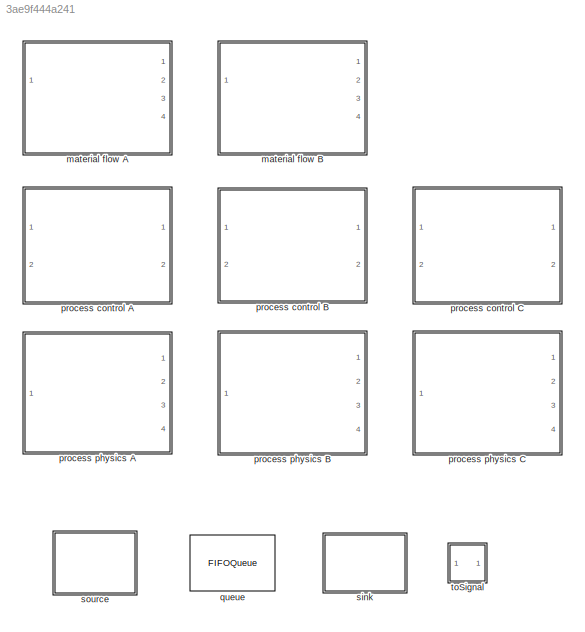
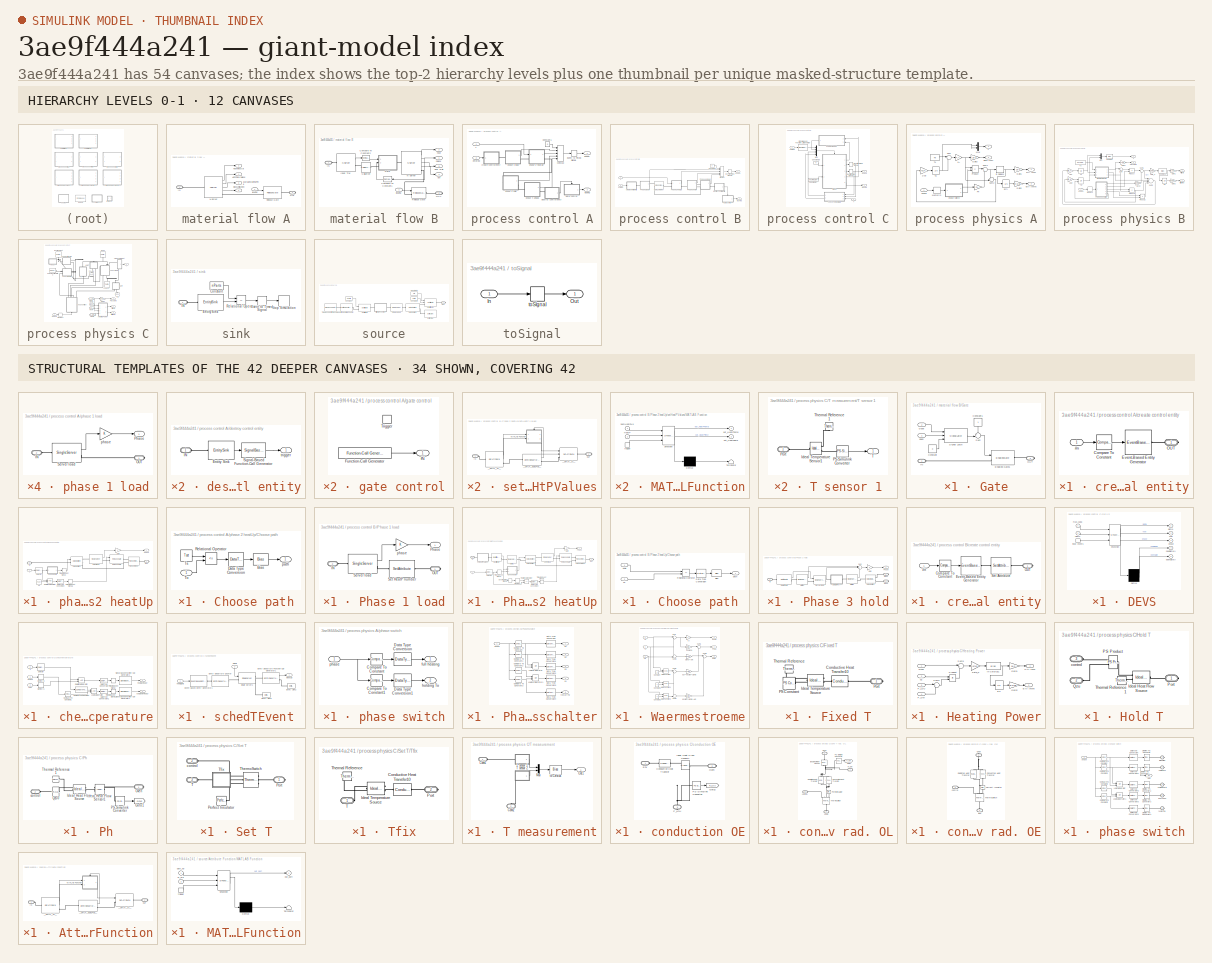
[diagram: thumbnail index - top-2 hierarchy levels (12 canvases) + 34 structural-template representatives of the remaining 42 canvases]
MODEL slx_3ae9f444a241
KIND library
CONFIG AbsTol = auto
CONFIG FixedStep = auto
CONFIG MaxStep = auto
CONFIG MinStep = auto
CONFIG RelTol = 1e-3
CONFIG SampleTimeConstraint = Unconstrained
CONFIG Solver = ode45
CONFIG SolverMode = Auto
CONFIG SolverName = ode45
CONFIG StartTime = 0.0
CONFIG StopTime = 10.0
BLOCK [SubSystem] material flow A
  Ports = [1, 4, 0, 0, 0, 1, 1]
  RequestExecContextInheritance = off
  Variant = off
BLOCK [Outport] material flow A/#EntitiesInBlock
  IconDisplay = Port number
BLOCK [Outport] material flow A/#EntitiesOut
  IconDisplay = Port number
  Port = 2
BLOCK [PMIOPort] material flow A/IN
  Port = 1
  Side = Left
BLOCK [NServer] material flow A/N-Server
  NumberOfServers = N
  OutputPortMap = o0,o1,o4,o5
  Ports = [0, 4, 0, 0, 0, 1, 1]
  ServiceTime = 0
  StatAverageWait = on
  StatNumberDeparted = on
  StatNumberInBlock = on
  StatUtilization = on
BLOCK [PMIOPort] material flow A/OUT
  Port = 2
  Side = Right
BLOCK [ReleaseGate] material flow A/Release Gate
  InputPortMap = u0
  OpenGateUpon = Function call from port fcn
  Ports = [1, 0, 0, 0, 0, 1, 1]
BLOCK [Outport] material flow A/avarageWaitingTime
  IconDisplay = Port number
  Port = 3
BLOCK [Outport] material flow A/blockUtilization
  IconDisplay = Port number
  Port = 4
BLOCK [Inport] material flow A/leaving
  IconDisplay = Port number
BLOCK [SubSystem] material flow B
  Ports = [1, 4, 0, 0, 0, 1, 1]
  RequestExecContextInheritance = off
  Variant = off
BLOCK [Reference] material flow B/Compare To Constant1  REF=simulink/Logic and Bit
Operations/Compare
To Constant
  Ports = [1, 1]
  SourceBlock = simulink/Logic and Bit\nOperations/Compare\nTo Constant
  SourceType = Compare To Constant
BLOCK [Reference] material flow B/Compare To Constant2  REF=simulink/Logic and Bit
Operations/Compare
To Constant
  Ports = [1, 1]
  SourceBlock = simulink/Logic and Bit\nOperations/Compare\nTo Constant
  SourceType = Compare To Constant
BLOCK [SubSystem] material flow B/Gate
  Ports = [2, 0, 0, 0, 0, 1, 1]
  RequestExecContextInheritance = off
  Variant = off
BLOCK [Constant] material flow B/Gate/Constant
  Value = 0
BLOCK [Constant] material flow B/Gate/Constant1
BLOCK [EnabledGate] material flow B/Gate/Enabled Gate1
  InputPortMap = u0
  Ports = [1, 0, 0, 0, 0, 1, 1]
BLOCK [PMIOPort] material flow B/Gate/IN
  Port = 1
  Side = Left
BLOCK [PMIOPort] material flow B/Gate/OUT
  Port = 2
  Side = Right
BLOCK [SignalLatch] material flow B/Gate/Signal Latch
  InputPortMap = u0,u1,u2
  MemoryReadEdgeOption = Rising
  OutputPortMap = o0
  Ports = [3, 1]
  ReadMemoryUpon = Trigger from port rtr
  ReportMemoryState = on
  ReportMemoryUponRead = off
  WriteMemoryUpon = Trigger from port wtr
BLOCK [Sum] material flow B/Gate/Sum
  IconShape = round
  InputSameDT = off
  Inputs = +-|
  OutDataTypeStr = Inherit: Inherit via internal rule
  Ports = [2, 1]
  SaturateOnIntegerOverflow = off
BLOCK [Inport] material flow B/Gate/close
  IconDisplay = Port number
  Port = 2
BLOCK [Inport] material flow B/Gate/open
  IconDisplay = Port number
BLOCK [PMIOPort] material flow B/IN
  Port = 1
  Side = Left
BLOCK [NServer] material flow B/Input Tray
  NumberOfServers = N
  OutputPortMap = o1
  Ports = [0, 1, 0, 0, 0, 1, 1]
  ServiceTime = 0
  StatNumberInBlock = on
BLOCK [NServer] material flow B/N-Server
  NumberOfServers = N
  OutputPortMap = o0,o1,o4,o5
  Ports = [0, 4, 0, 0, 0, 1, 1]
  ServiceTime = 0
  StatAverageWait = on
  StatNumberDeparted = on
  StatNumberInBlock = on
  StatUtilization = on
BLOCK [NServer] material flow B/Nullserver
  NumberOfServers = 1
  Ports = [0, 0, 0, 0, 0, 1, 1]
  ServiceTime = 0
BLOCK [PMIOPort] material flow B/OUT
  Port = 2
  Side = Right
BLOCK [ReleaseGate] material flow B/Release Gate
  InputPortMap = u0
  OpenGateUpon = Function call from port fcn
  Ports = [1, 0, 0, 0, 0, 1, 1]
BLOCK [Outport] material flow B/avg. wait
  IconDisplay = Port number
  Port = 3
BLOCK [Inport] material flow B/leaving
  IconDisplay = Port number
BLOCK [Outport] material flow B/nblock
  IconDisplay = Port number
BLOCK [Outport] material flow B/nout
  IconDisplay = Port number
  Port = 2
BLOCK [Outport] material flow B/util
  IconDisplay = Port number
  Port = 4
BLOCK [SubSystem] process control A
  Ports = [2, 2]
  RequestExecContextInheritance = off
  Variant = off
BLOCK [Constant] process control A/Constant1
  Value = 0
BLOCK [EventToTimedSignal] process control A/Event to Timed Signal1
  InputPortMap = u0
  OutputPortMap = o0
  Ports = [1, 1]
BLOCK [MinMax] process control A/MinMax
  Function = max
  InputSameDT = off
  Inputs = 5
  Ports = [5, 1]
  SaturateOnIntegerOverflow = off
BLOCK [Inport] process control A/T
  IconDisplay = Port number
BLOCK [SubSystem] process control A/create control entity
  Ports = [1, 0, 0, 0, 0, 0, 1]
  RequestExecContextInheritance = off
  Variant = off
BLOCK [Inport] process control A/create control entity/#n
  IconDisplay = Port number
BLOCK [Reference] process control A/create control entity/Compare To Constant  REF=simulink/Logic and Bit
Operations/Compare
To Constant
  Ports = [1, 1]
  SourceBlock = simulink/Logic and Bit\nOperations/Compare\nTo Constant
  SourceType = Compare To Constant
BLOCK [EventBasedEntityGenerator] process control A/create control entity/Event-Based Entity Generator
  InputPortMap = u0
  Ports = [1, 0, 0, 0, 0, 0, 1]
BLOCK [PMIOPort] process control A/create control entity/OUT
  Port = 1
  Side = Right
BLOCK [SubSystem] process control A/destroy control entity
  Ports = [0, 1, 0, 0, 0, 1]
  RequestExecContextInheritance = off
  Variant = off
BLOCK [EntitySink] process control A/destroy control entity/Entity Sink
  OutputPortMap = o0
  Ports = [0, 1, 0, 0, 0, 1]
  StatNumberArrived = on
BLOCK [PMIOPort] process control A/destroy control entity/IN
  Port = 1
  Side = Left
BLOCK [SignalBasedFunctionCallGenerator] process control A/destroy control entity/Signal-Based Function-Call Generator
  InputPortMap = u1
  OutputPortMap = o0
  Ports = [1, 1]
BLOCK [Outport] process control A/destroy control entity/trigger
  IconDisplay = Port number
BLOCK [Inport] process control A/entered
  IconDisplay = Port number
  Port = 2
BLOCK [SubSystem] process control A/gate control
  Ports = [0, 1, 0, 1]
  RequestExecContextInheritance = off
  TreatAsAtomicUnit = on
  Variant = off
BLOCK [Reference] process control A/gate control/Function-Call Generator  REF=simulink/Ports &
Subsystems/Function-Call
Generator
  Ports = [0, 1]
  SourceBlock = simulink/Ports &\nSubsystems/Function-Call\nGenerator
  SourceType = Function-Call Generator
BLOCK [TriggerPort] process control A/gate control/Trigger
  Ports = []
  StatesWhenEnabling = held
  TriggerType = function-call
  VariantControl = Variant
BLOCK [Outport] process control A/gate control/fN
  IconDisplay = Port number
BLOCK [Outport] process control A/leaving
  IconDisplay = Port number
  Port = 2
BLOCK [Outport] process control A/phase
  IconDisplay = Port number
BLOCK [SubSystem] process control A/phase 1 load
  Ports = [0, 1, 0, 0, 0, 1, 1]
  RequestExecContextInheritance = off
  Variant = off
BLOCK [PMIOPort] process control A/phase 1 load/IN
  Port = 2
  Side = Left
BLOCK [PMIOPort] process control A/phase 1 load/OUT
  Port = 1
  Side = Right
BLOCK [Outport] process control A/phase 1 load/Phase
  IconDisplay = Port number
BLOCK [SingleServer] process control A/phase 1 load/Server load
  OutputPortMap = o1
  Ports = [0, 1, 0, 0, 0, 1, 1]
  ServiceTime = 60*ts
  StatNumberInBlock = on
BLOCK [Gain] process control A/phase 1 load/phase
  OutDataTypeStr = Inherit: Inherit via internal rule
  ParamDataTypeStr = Inherit: Inherit via internal rule
  SaturateOnIntegerOverflow = off
BLOCK [SubSystem] process control A/phase 2 heatUp
  Ports = [1, 1, 0, 0, 0, 1, 1]
  RequestExecContextInheritance = off
  Variant = off
BLOCK [SubSystem] process control A/phase 2 heatUp/Choose path
  Ports = [1, 1]
  RequestExecContextInheritance = off
  Variant = off
BLOCK [Bias] process control A/phase 2 heatUp/Choose path/Bias
  Bias = 1
  SaturateOnIntegerOverflow = off
BLOCK [DataTypeConversion] process control A/phase 2 heatUp/Choose path/Data Type Conversion
  OutDataTypeStr = double
  RndMeth = Floor
  SaturateOnIntegerOverflow = off
BLOCK [RelationalOperator] process control A/phase 2 heatUp/Choose path/Relational Operator
  InputSameDT = off
  Operator = <=
  OutDataTypeStr = boolean
  Ports = [2, 1]
BLOCK [Inport] process control A/phase 2 heatUp/Choose path/To
  IconDisplay = Port number
BLOCK [Constant] process control A/phase 2 heatUp/Choose path/Ts
  Value = Tset
BLOCK [Outport] process control A/phase 2 heatUp/Choose path/path
  IconDisplay = Port number
BLOCK [DataTypeConversion] process control A/phase 2 heatUp/Data Type Conversion
  OutDataTypeStr = double
  RndMeth = Floor
  SaturateOnIntegerOverflow = off
BLOCK [Gain] process control A/phase 2 heatUp/Gain
  Gain = 2
  OutDataTypeStr = Inherit: Inherit via internal rule
  ParamDataTypeStr = Inherit: Inherit via internal rule
  SaturateOnIntegerOverflow = off
BLOCK [PMIOPort] process control A/phase 2 heatUp/IN
  Port = 2
  Side = Left
BLOCK [PMIOPort] process control A/phase 2 heatUp/OUT
  Port = 1
  Side = Right
BLOCK [OutputSwitch] process control A/phase 2 heatUp/Output Switch
  InitialConditionsOpt = on
  InputPortMap = u0
  NumberOutputPorts = 2
  Ports = [1, 0, 0, 0, 0, 1, 2]
  SwitchingCriterion = From signal port p
BLOCK [PathCombiner] process control A/phase 2 heatUp/Path Combiner
  NumberInputPorts = 2
  Ports = [0, 0, 0, 0, 0, 2, 1]
BLOCK [Outport] process control A/phase 2 heatUp/Phase
  IconDisplay = Port number
BLOCK [RelationalOperator] process control A/phase 2 heatUp/Relational Operator
  InputSameDT = off
  OutDataTypeStr = boolean
  Ports = [2, 1]
BLOCK [ReleaseGate] process control A/phase 2 heatUp/Release Gate
  InputPortMap = u0
  Ports = [1, 0, 0, 0, 0, 1, 1]
BLOCK [Selector] process control A/phase 2 heatUp/Selector
  IndexOptions = Index vector (dialog)
  Indices = [1]
  InputPortWidth = 2
  OutputSizes = 1
  Ports = [1, 1]
BLOCK [SingleServer] process control A/phase 2 heatUp/Server load
  OutputPortMap = o1
  Ports = [0, 1, 0, 0, 0, 1, 1]
  ServiceTime = 0
  StatNumberInBlock = on
BLOCK [Inport] process control A/phase 2 heatUp/T
  IconDisplay = Port number
BLOCK [TimedToEventSignal] process control A/phase 2 heatUp/Timed to Event Signal
  InputPortMap = u0
  OutputPortMap = o0
  Ports = [1, 1]
BLOCK [TimedToEventSignal] process control A/phase 2 heatUp/Timed to Event Signal1
  InputPortMap = u0
  OutputPortMap = o0
  Ports = [1, 1]
BLOCK [Constant] process control A/phase 2 heatUp/Ts
  Value = Tset
BLOCK [SubSystem] process control A/phase 3 hold
  Ports = [0, 1, 0, 0, 0, 1, 1]
  RequestExecContextInheritance = off
  Variant = off
BLOCK [Gain] process control A/phase 3 hold/Gain
  Gain = 3
  OutDataTypeStr = Inherit: Inherit via internal rule
  ParamDataTypeStr = Inherit: Inherit via internal rule
  SaturateOnIntegerOverflow = off
BLOCK [PMIOPort] process control A/phase 3 hold/IN
  Port = 1
  Side = Left
BLOCK [PMIOPort] process control A/phase 3 hold/OUT1
  Port = 2
  Side = Right
BLOCK [Outport] process control A/phase 3 hold/Phase
  IconDisplay = Port number
BLOCK [SingleServer] process control A/phase 3 hold/Server load
  OutputPortMap = o1
  Ports = [0, 1, 0, 0, 0, 1, 1]
  ServiceTime = tH*60
  StatNumberInBlock = on
BLOCK [SubSystem] process control A/phase 4 unload
  Ports = [0, 1, 0, 0, 0, 1, 1]
  RequestExecContextInheritance = off
  Variant = off
BLOCK [Gain] process control A/phase 4 unload/Gain
  Gain = 4
  OutDataTypeStr = Inherit: Inherit via internal rule
  ParamDataTypeStr = Inherit: Inherit via internal rule
  SaturateOnIntegerOverflow = off
BLOCK [PMIOPort] process control A/phase 4 unload/IN
  Port = 2
  Side = Left
BLOCK [PMIOPort] process control A/phase 4 unload/OUT
  Port = 1
  Side = Right
BLOCK [Outport] process control A/phase 4 unload/Phase
  IconDisplay = Port number
BLOCK [SingleServer] process control A/phase 4 unload/Server load
  OutputPortMap = o1
  Ports = [0, 1, 0, 0, 0, 1, 1]
  ServiceTime = 60*ts
  StatNumberInBlock = on
BLOCK [SubSystem] process control B
  Ports = [2, 2]
  RequestExecContextInheritance = off
  Variant = off
BLOCK [Constant] process control B/Constant1
  Value = 0
BLOCK [EventToTimedSignal] process control B/Event to Timed Signal1
  InputPortMap = u0
  OutputPortMap = o0
  Ports = [1, 1]
BLOCK [MinMax] process control B/MinMax
  Function = max
  InputSameDT = off
  Inputs = 5
  Ports = [5, 1]
  SaturateOnIntegerOverflow = off
BLOCK [PathCombiner] process control B/Path Combiner
  NumberInputPorts = 2
  Ports = [0, 0, 0, 0, 0, 2, 1]
BLOCK [SubSystem] process control B/Phase 1 load
  Ports = [0, 1, 0, 0, 0, 1, 1]
  RequestExecContextInheritance = off
  Variant = off
BLOCK [PMIOPort] process control B/Phase 1 load/IN
  Port = 2
  Side = Left
BLOCK [PMIOPort] process control B/Phase 1 load/OUT
  Port = 1
  Side = Right
BLOCK [Outport] process control B/Phase 1 load/Phase
  IconDisplay = Port number
BLOCK [SingleServer] process control B/Phase 1 load/Server load
  OutputPortMap = o1
  Ports = [0, 1, 0, 0, 0, 1, 1]
  ServiceTime = 60*ts
  StatNumberInBlock = on
BLOCK [SetAttribute] process control B/Phase 1 load/Set HeatP number
  AttributeFrom = Dialog|Dialog
  AttributeName = nextHeatPNo|HeatP
  AttributeTreatAsVector = 1|1
  AttributeValue = 1|HeatProgram
  EvaluatedAttributeValue = { 1;HeatProgram}
  Ports = [0, 0, 0, 0, 0, 1, 1]
BLOCK [Gain] process control B/Phase 1 load/phase
  OutDataTypeStr = Inherit: Inherit via internal rule
  ParamDataTypeStr = Inherit: Inherit via internal rule
  SaturateOnIntegerOverflow = off
BLOCK [SubSystem] process control B/Phase 2 heatUp
  Ports = [1, 1, 0, 0, 0, 1, 1]
  RequestExecContextInheritance = off
  Variant = off
BLOCK [SubSystem] process control B/Phase 2 heatUp/Choose path
  Ports = [2, 1]
  RequestExecContextInheritance = off
  TreatAsAtomicUnit = on
  Variant = off
BLOCK [Bias] process control B/Phase 2 heatUp/Choose path/Bias
  Bias = 1
  SaturateOnIntegerOverflow = off
BLOCK [DataTypeConversion] process control B/Phase 2 heatUp/Choose path/Data Type Conversion
  OutDataTypeStr = double
  RndMeth = Floor
  SaturateOnIntegerOverflow = off
BLOCK [RelationalOperator] process control B/Phase 2 heatUp/Choose path/Relational Operator
  InputSameDT = off
  Operator = <=
  OutDataTypeStr = boolean
  Ports = [2, 1]
BLOCK [Inport] process control B/Phase 2 heatUp/Choose path/To
  IconDisplay = Port number
  Port = 2
BLOCK [Inport] process control B/Phase 2 heatUp/Choose path/Tsoll
  IconDisplay = Port number
BLOCK [Outport] process control B/Phase 2 heatUp/Choose path/path
  IconDisplay = Port number
BLOCK [DataTypeConversion] process control B/Phase 2 heatUp/Data Type Conversion
  OutDataTypeStr = double
  RndMeth = Floor
  SaturateOnIntegerOverflow = off
BLOCK [EventToTimedSignal] process control B/Phase 2 heatUp/Event to Timed Signal
  InputPortMap = u0
  OutputPortMap = o0
  Ports = [1, 1]
BLOCK [Gain] process control B/Phase 2 heatUp/Gain
  Gain = 2
  OutDataTypeStr = Inherit: Inherit via internal rule
  ParamDataTypeStr = Inherit: Inherit via internal rule
  SaturateOnIntegerOverflow = off
BLOCK [GetAttribute] process control B/Phase 2 heatUp/Get Attribute
  AttributeName = HeatPTemp
  EvaluatedDefaultAttributeValue = { []}
  OutputPortMap = o1
  Ports = [0, 1, 0, 0, 0, 1, 1]
BLOCK [PMIOPort] process control B/Phase 2 heatUp/IN
  Port = 2
  Side = Left
BLOCK [Memory] process control B/Phase 2 heatUp/Memory1
BLOCK [PMIOPort] process control B/Phase 2 heatUp/OUT
  Port = 1
  Side = Right
BLOCK [OutputSwitch] process control B/Phase 2 heatUp/Output Switch
  InitialConditionsOpt = on
  InputPortMap = u0
  NumberOutputPorts = 2
  Ports = [1, 0, 0, 0, 0, 1, 2]
  SwitchingCriterion = From signal port p
BLOCK [PathCombiner] process control B/Phase 2 heatUp/Path Combiner
  NumberInputPorts = 2
  Ports = [0, 0, 0, 0, 0, 2, 1]
BLOCK [Outport] process control B/Phase 2 heatUp/Phase
  IconDisplay = Port number
BLOCK [RelationalOperator] process control B/Phase 2 heatUp/Relational Operator
  InputSameDT = off
  Operator = <=
  OutDataTypeStr = boolean
  Ports = [2, 1]
BLOCK [ReleaseGate] process control B/Phase 2 heatUp/Release Gate
  InputPortMap = u0
  Ports = [1, 0, 0, 0, 0, 1, 1]
BLOCK [Selector] process control B/Phase 2 heatUp/Selector
  IndexOptions = Index vector (dialog)
  Indices = [1]
  InputPortWidth = 2
  OutputSizes = 1
  Ports = [1, 1]
BLOCK [SingleServer] process control B/Phase 2 heatUp/Server load
  OutputPortMap = o1
  Ports = [0, 1, 0, 0, 0, 1, 1]
  ServiceTime = 0
  StatNumberInBlock = on
BLOCK [Inport] process control B/Phase 2 heatUp/T
  IconDisplay = Port number
BLOCK [TimedToEventSignal] process control B/Phase 2 heatUp/Timed to Event Signal
  InputPortMap = u0
  OutputPortMap = o0
  Ports = [1, 1]
BLOCK [TimedToEventSignal] process control B/Phase 2 heatUp/Timed to Event Signal1
  InputPortMap = u0
  OutputPortMap = o0
  Ports = [1, 1]
BLOCK [SingleServer] process control B/Phase 2 heatUp/Wait 0s
  Ports = [0, 0, 0, 0, 0, 1, 1]
  ServiceTime = 0
BLOCK [SubSystem] process control B/Phase 2 heatUp/setHeatPValues
  CopyFcn = des.afb.attributefunction_support(gcb,'CopyFcn');
  ErrorFcn = des.afb.error_redirect
  LoadFcn = des.afb.attributefunction_support(gcb,'LoadFcn');
  MaskHideContents = on
  OpenFcn = des.afb.attributefunction_support(gcb,'OpenFcn');
  Ports = [0, 0, 0, 0, 0, 1, 1]
  RequestExecContextInheritance = off
  StartFcn = des.afb.attributefunction_support(gcb,'StartFcn');
  Variant = off
BLOCK [PMIOPort] process control B/Phase 2 heatUp/setHeatPValues/IN
  Port = 1
  Side = Left
BLOCK [SubSystem] process control B/Phase 2 heatUp/setHeatPValues/MATLAB Function
  ErrorFcn = Stateflow.Translate.translate
  PermitHierarchicalResolution = ExplicitOnly
  Ports = [2, 2, 0, 1]
  RequestExecContextInheritance = off
  SFBlockType = MATLAB Function
  TreatAsAtomicUnit = on
  Variant = off
BLOCK [Demux] process control B/Phase 2 heatUp/setHeatPValues/MATLAB Function/ Demux 
  Outputs = 1
  Ports = [1, 1]
BLOCK [S-Function] process control B/Phase 2 heatUp/setHeatPValues/MATLAB Function/ SFunction 
  EnableBusSupport = off
  FunctionName = sf_sfun
  PortCounts = [3 3]
  Ports = [3, 3]
  SFunctionDeploymentMode = off
  Tag = Stateflow S-Function ovenLib 3
BLOCK [Terminator] process control B/Phase 2 heatUp/setHeatPValues/MATLAB Function/ Terminator 
BLOCK [Inport] process control B/Phase 2 heatUp/setHeatPValues/MATLAB Function/HeatP
  IconDisplay = Port number
  Port = 2
BLOCK [Inport] process control B/Phase 2 heatUp/setHeatPValues/MATLAB Function/nextHeatPNo
  IconDisplay = Port number
BLOCK [Outport] process control B/Phase 2 heatUp/setHeatPValues/MATLAB Function/out_HeatPTemp
  IconDisplay = Port number
BLOCK [Outport] process control B/Phase 2 heatUp/setHeatPValues/MATLAB Function/out_HeatPTime
  IconDisplay = Port number
  Port = 2
BLOCK [TriggerPort] process control B/Phase 2 heatUp/setHeatPValues/MATLAB Function/trigger
  Ports = [0, 1]
  ShowOutputPort = on
  TriggerType = function-call
  VariantControl = Variant
BLOCK [PMIOPort] process control B/Phase 2 heatUp/setHeatPValues/OUT
  Port = 2
  Side = Right
BLOCK [EntityDepartureFunctionCallGenerator] process control B/Phase 2 heatUp/setHeatPValues/__DMLF__EDE2FCE__
  IsInsideAFB = on
  OutputPortMap = o0
  Ports = [0, 1, 0, 0, 0, 1, 1]
  TimingFunctionCallF1 = Before entity departure
BLOCK [GetAttribute] process control B/Phase 2 heatUp/setHeatPValues/__DMLF__GA__
  AttributeDefaultValue = 1|1
  AttributeMissing = Error|Error
  AttributeName = nextHeatPNo|HeatP
  AttributeSendTiming = Before entity departure|Before entity departure
  AttributeTreatAsVector = 1|1
  EvaluatedDefaultAttributeValue = { [];[]}
  IsInsideAFB = on
  OutputPortMap = o1,o2
  Ports = [0, 2, 0, 0, 0, 1, 1]
BLOCK [SetAttribute] process control B/Phase 2 heatUp/setHeatPValues/__DMLF__SA__
  AttributeFrom = Signal port|Signal port
  AttributeName = HeatPTemp|HeatPTime
  AttributeTreatAsVector = 1|1
  AttributeValue = 1|1
  EvaluatedAttributeValue = { [];[]}
  InputPortMap = u0,u1
  IsInsideAFB = on
  Ports = [2, 0, 0, 0, 0, 1, 1]
BLOCK [SubSystem] process control B/Phase 3 hold
  Ports = [0, 1, 0, 0, 0, 1, 2]
  RequestExecContextInheritance = off
  Variant = off
BLOCK [Gain] process control B/Phase 3 hold/Gain
  Gain = 3
  OutDataTypeStr = Inherit: Inherit via internal rule
  ParamDataTypeStr = Inherit: Inherit via internal rule
  SaturateOnIntegerOverflow = off
BLOCK [GetAttribute] process control B/Phase 3 hold/Get Attribute
  AttributeName = HeatPTime
  EvaluatedDefaultAttributeValue = { []}
  OutputPortMap = o1
  Ports = [0, 1, 0, 0, 0, 1, 1]
BLOCK [PMIOPort] process control B/Phase 3 hold/IN
  Port = 1
  Side = Left
BLOCK [PMIOPort] process control B/Phase 3 hold/OUT1
  Port = 2
  Side = Right
BLOCK [PMIOPort] process control B/Phase 3 hold/OUT2
  Port = 3
  Side = Right
BLOCK [OutputSwitch] process control B/Phase 3 hold/Output Switch
  AttributeName = OutPort
  NumberOutputPorts = 2
  Ports = [0, 0, 0, 0, 0, 1, 2]
  SwitchingCriterion = From attribute
BLOCK [Outport] process control B/Phase 3 hold/Phase
  IconDisplay = Port number
BLOCK [SingleServer] process control B/Phase 3 hold/Server load
  InputPortMap = u0
  OutputPortMap = o1
  Ports = [1, 1, 0, 0, 0, 1, 1]
  ServiceTime = ts
  ServiceTimeFrom = Signal port t
  StatNumberInBlock = on
BLOCK [SubSystem] process control B/Phase 3 hold/Set Out Port
  CopyFcn = des.afb.attributefunction_support(gcb,'CopyFcn');
  ErrorFcn = des.afb.error_redirect
  LoadFcn = des.afb.attributefunction_support(gcb,'LoadFcn');
  MaskHideContents = on
  OpenFcn = des.afb.attributefunction_support(gcb,'OpenFcn');
  Ports = [0, 0, 0, 0, 0, 1, 1]
  RequestExecContextInheritance = off
  StartFcn = des.afb.attributefunction_support(gcb,'StartFcn');
  Variant = off
BLOCK [PMIOPort] process control B/Phase 3 hold/Set Out Port/IN
  Port = 1
  Side = Left
BLOCK [SubSystem] process control B/Phase 3 hold/Set Out Port/MATLAB Function
  ErrorFcn = Stateflow.Translate.translate
  PermitHierarchicalResolution = ExplicitOnly
  Ports = [2, 2, 0, 1]
  RequestExecContextInheritance = off
  SFBlockType = MATLAB Function
  TreatAsAtomicUnit = on
  Variant = off
BLOCK [Demux] process control B/Phase 3 hold/Set Out Port/MATLAB Function/ Demux 
  Outputs = 1
  Ports = [1, 1]
BLOCK [S-Function] process control B/Phase 3 hold/Set Out Port/MATLAB Function/ SFunction 
  EnableBusSupport = off
  FunctionName = sf_sfun
  PortCounts = [3 3]
  Ports = [3, 3]
  SFunctionDeploymentMode = off
  Tag = Stateflow S-Function ovenLib 4
BLOCK [Terminator] process control B/Phase 3 hold/Set Out Port/MATLAB Function/ Terminator 
BLOCK [Inport] process control B/Phase 3 hold/Set Out Port/MATLAB Function/HeatP
  IconDisplay = Port number
  Port = 2
BLOCK [Inport] process control B/Phase 3 hold/Set Out Port/MATLAB Function/nextHeatPNo
  IconDisplay = Port number
BLOCK [Outport] process control B/Phase 3 hold/Set Out Port/MATLAB Function/out_OutPort
  IconDisplay = Port number
  Port = 2
BLOCK [Outport] process control B/Phase 3 hold/Set Out Port/MATLAB Function/out_nextHeatPNo
  IconDisplay = Port number
BLOCK [TriggerPort] process control B/Phase 3 hold/Set Out Port/MATLAB Function/trigger
  Ports = [0, 1]
  ShowOutputPort = on
  TriggerType = function-call
  VariantControl = Variant
BLOCK [PMIOPort] process control B/Phase 3 hold/Set Out Port/OUT
  Port = 2
  Side = Right
BLOCK [EntityDepartureFunctionCallGenerator] process control B/Phase 3 hold/Set Out Port/__DMLF__EDE2FCE__
  IsInsideAFB = on
  OutputPortMap = o0
  Ports = [0, 1, 0, 0, 0, 1, 1]
  TimingFunctionCallF1 = Before entity departure
BLOCK [GetAttribute] process control B/Phase 3 hold/Set Out Port/__DMLF__GA__
  AttributeDefaultValue = 1|1
  AttributeMissing = Error|Error
  AttributeName = nextHeatPNo|HeatP
  AttributeSendTiming = Before entity departure|Before entity departure
  AttributeTreatAsVector = 1|1
  EvaluatedDefaultAttributeValue = { [];[]}
  IsInsideAFB = on
  OutputPortMap = o1,o2
  Ports = [0, 2, 0, 0, 0, 1, 1]
BLOCK [SetAttribute] process control B/Phase 3 hold/Set Out Port/__DMLF__SA__
  AttributeFrom = Signal port|Signal port
  AttributeName = nextHeatPNo|OutPort
  AttributeTreatAsVector = 1|1
  AttributeValue = 1|1
  EvaluatedAttributeValue = { [];[]}
  InputPortMap = u0,u1
  IsInsideAFB = on
  Ports = [2, 0, 0, 0, 0, 1, 1]
BLOCK [Sum] process control B/Phase 3 hold/Sum
  IconShape = round
  InputSameDT = off
  Inputs = |+++
  OutDataTypeStr = Inherit: Inherit via internal rule
  Ports = [3, 1]
  SaturateOnIntegerOverflow = off
BLOCK [SingleServer] process control B/Phase 3 hold/Wait 0s
  OutputPortMap = o1
  Ports = [0, 1, 0, 0, 0, 1, 1]
  ServiceTime = 0
  StatNumberInBlock = on
BLOCK [SingleServer] process control B/Phase 3 hold/Wait 0s 
  OutputPortMap = o1
  Ports = [0, 1, 0, 0, 0, 1, 1]
  ServiceTime = 0
  StatNumberInBlock = on
BLOCK [SubSystem] process control B/Phase 4 unload
  Ports = [0, 1, 0, 0, 0, 1, 1]
  RequestExecContextInheritance = off
  Variant = off
BLOCK [Gain] process control B/Phase 4 unload/Gain
  Gain = 4
  OutDataTypeStr = Inherit: Inherit via internal rule
  ParamDataTypeStr = Inherit: Inherit via internal rule
  SaturateOnIntegerOverflow = off
BLOCK [PMIOPort] process control B/Phase 4 unload/IN
  Port = 2
  Side = Left
BLOCK [PMIOPort] process control B/Phase 4 unload/OUT
  Port = 1
  Side = Right
BLOCK [Outport] process control B/Phase 4 unload/Phase
  IconDisplay = Port number
BLOCK [SingleServer] process control B/Phase 4 unload/Server load
  OutputPortMap = o1
  Ports = [0, 1, 0, 0, 0, 1, 1]
  ServiceTime = 60*ts
  StatNumberInBlock = on
BLOCK [Inport] process control B/T
  IconDisplay = Port number
BLOCK [SubSystem] process control B/create control entity
  Ports = [1, 0, 0, 0, 0, 0, 1]
  RequestExecContextInheritance = off
  Variant = off
BLOCK [Inport] process control B/create control entity/#n
  IconDisplay = Port number
BLOCK [Reference] process control B/create control entity/Compare To Constant  REF=simulink/Logic and Bit
Operations/Compare
To Constant
  Ports = [1, 1]
  SourceBlock = simulink/Logic and Bit\nOperations/Compare\nTo Constant
  SourceType = Compare To Constant
BLOCK [EventBasedEntityGenerator] process control B/create control entity/Event-Based Entity Generator
  InputPortMap = u0
  Ports = [1, 0, 0, 0, 0, 0, 1]
BLOCK [PMIOPort] process control B/create control entity/OUT
  Port = 1
  Side = Right
BLOCK [SetAttribute] process control B/create control entity/Set Attribute
  AttributeName = BatchQuantity
  AttributeValue = N
  EvaluatedAttributeValue = { N}
  Ports = [0, 0, 0, 0, 0, 1, 1]
BLOCK [SubSystem] process control B/destroy control entity
  Ports = [0, 1, 0, 0, 0, 1]
  RequestExecContextInheritance = off
  Variant = off
BLOCK [EntitySink] process control B/destroy control entity/Entity Sink
  OutputPortMap = o0
  Ports = [0, 1, 0, 0, 0, 1]
  StatNumberArrived = on
BLOCK [PMIOPort] process control B/destroy control entity/IN
  Port = 1
  Side = Left
BLOCK [SignalBasedFunctionCallGenerator] process control B/destroy control entity/Signal-Based Function-Call Generator
  InputPortMap = u1
  OutputPortMap = o0
  Ports = [1, 1]
BLOCK [Outport] process control B/destroy control entity/trigger
  IconDisplay = Port number
BLOCK [Inport] process control B/entered
  IconDisplay = Port number
  Port = 2
BLOCK [SubSystem] process control B/gate control
  Ports = [0, 1, 0, 1]
  RequestExecContextInheritance = off
  TreatAsAtomicUnit = on
  Variant = off
BLOCK [Reference] process control B/gate control/Function-Call Generator  REF=simulink/Ports &
Subsystems/Function-Call
Generator
  Ports = [0, 1]
  SourceBlock = simulink/Ports &\nSubsystems/Function-Call\nGenerator
  SourceType = Function-Call Generator
BLOCK [TriggerPort] process control B/gate control/Trigger
  Ports = []
  StatesWhenEnabling = held
  TriggerType = function-call
  VariantControl = Variant
BLOCK [Outport] process control B/gate control/fN
  IconDisplay = Port number
BLOCK [Outport] process control B/leaving
  IconDisplay = Port number
  Port = 2
BLOCK [Outport] process control B/phase
  IconDisplay = Port number
BLOCK [SubSystem] process control C
  Ports = [2, 2]
  RequestExecContextInheritance = off
  Variant = off
BLOCK [Constant] process control C/Constant16
  Value = N
BLOCK [Constant] process control C/Constant17
  Value = HeatProgram
BLOCK [SubSystem] process control C/DEVS
  ErrorFcn = Stateflow.Translate.translate
  PermitHierarchicalResolution = ExplicitOnly
  Ports = [2, 5, 0, 1]
  RequestExecContextInheritance = off
  SFBlockType = Chart
  TreatAsAtomicUnit = on
  Variant = off
BLOCK [Demux] process control C/DEVS/ Demux 
  Outputs = 2
  Ports = [1, 2]
BLOCK [S-Function] process control C/DEVS/ SFunction 
  EnableBusSupport = off
  FunctionName = sf_sfun
  PortCounts = [3 4]
  Ports = [3, 4]
  SFunctionDeploymentMode = off
  Tag = Stateflow S-Function ovenLib 2
BLOCK [TriggerPort] process control C/DEVS/ input events 
  Ports = [0, 1]
  ShowOutputPort = on
  StatesWhenEnabling = held
  TriggerType = function-call
  VariantControl = Variant
BLOCK [Inport] process control C/DEVS/HeatP
  IconDisplay = Port number
  Port = 2
BLOCK [Outport] process control C/DEVS/Tset
  IconDisplay = Port number
  Port = 2
BLOCK [Inport] process control C/DEVS/max_capa
  IconDisplay = Port number
BLOCK [Outport] process control C/DEVS/newSigma()
  IconDisplay = Port number
  Port = 4
BLOCK [Outport] process control C/DEVS/openGate()
  IconDisplay = Port number
  Port = 5
BLOCK [Outport] process control C/DEVS/phase
  IconDisplay = Port number
  Port = 3
BLOCK [Outport] process control C/DEVS/sigma
  IconDisplay = Port number
BLOCK [EventToTimedSignal] process control C/Event to Timed Signal1
  InputPortMap = u0
  OutputPortMap = o0
  Ports = [1, 1]
BLOCK [EventToTimedSignal] process control C/Event to Timed Signal2
  InputPortMap = u0
  OutputPortMap = o0
  Ports = [1, 1]
BLOCK [Mux] process control C/Mux
  DisplayOption = bar
  Ports = [4, 1]
BLOCK [SignalBasedFunctionCallGenerator] process control C/Signal-Based Function-Call Generator
  InputPortMap = u1
  OutputPortMap = o0
  Ports = [1, 1]
BLOCK [Inport] process control C/T
  IconDisplay = Port number
BLOCK [SubSystem] process control C/checkTemperature
  Ports = [3, 2]
  RequestExecContextInheritance = off
  Variant = off
BLOCK [Reference] process control C/checkTemperature/Compare To Constant  REF=simulink/Logic and Bit
Operations/Compare
To Constant
  Ports = [1, 1]
  SourceBlock = simulink/Logic and Bit\nOperations/Compare\nTo Constant
  SourceType = Compare To Constant
BLOCK [Reference] process control C/checkTemperature/Compare To Constant1  REF=simulink/Logic and Bit
Operations/Compare
To Constant
  Ports = [1, 1]
  SourceBlock = simulink/Logic and Bit\nOperations/Compare\nTo Constant
  SourceType = Compare To Constant
BLOCK [DataTypeConversion] process control C/checkTemperature/Data Type Conversion
  OutDataTypeStr = double
  RndMeth = Floor
  SaturateOnIntegerOverflow = off
BLOCK [DataTypeConversion] process control C/checkTemperature/Data Type Conversion1
  OutDataTypeStr = double
  RndMeth = Floor
  SaturateOnIntegerOverflow = off
BLOCK [Logic] process control C/checkTemperature/Logical Operator
  AllPortsSameDT = off
  OutDataTypeStr = boolean
  Ports = [2, 1]
BLOCK [Memory] process control C/checkTemperature/Memory1
BLOCK [Memory] process control C/checkTemperature/Memory3
  InheritSampleTime = on
BLOCK [RelationalOperator] process control C/checkTemperature/Relational Operator
  InputSameDT = off
  OutDataTypeStr = boolean
  Ports = [2, 1]
BLOCK [Selector] process control C/checkTemperature/Selector
  IndexOptions = Index vector (dialog)
  Indices = [1]
  InputPortWidth = 2
  OutputSizes = 1
  Ports = [1, 1]
BLOCK [SignalBasedFunctionCallGenerator] process control C/checkTemperature/Signal-Based Function-Call Generator1
  InputPortMap = u1
  OutputPortMap = o0
  Ports = [1, 1]
BLOCK [SignalBasedFunctionCallGenerator] process control C/checkTemperature/Signal-Based Function-Call Generator2
  InputPortMap = u1
  OutputPortMap = o0
  Ports = [1, 1]
BLOCK [Inport] process control C/checkTemperature/T
  IconDisplay = Port number
  Port = 3
BLOCK [TimedToEventSignal] process control C/checkTemperature/Timed to Event Signal
  InputPortMap = u0
  OutputPortMap = o0
  Ports = [1, 1]
BLOCK [TimedToEventSignal] process control C/checkTemperature/Timed to Event Signal1
  InputPortMap = u0
  OutputPortMap = o0
  Ports = [1, 1]
BLOCK [Inport] process control C/checkTemperature/Tset
  IconDisplay = Port number
  Port = 2
BLOCK [Outport] process control C/checkTemperature/coolDownReady
  IconDisplay = Port number
  Port = 2
BLOCK [Outport] process control C/checkTemperature/heatUpReady
  IconDisplay = Port number
BLOCK [Inport] process control C/checkTemperature/phase
  IconDisplay = Port number
BLOCK [Inport] process control C/entered
  IconDisplay = Port number
  Port = 2
BLOCK [Outport] process control C/leaving
  IconDisplay = Port number
  Port = 2
BLOCK [Outport] process control C/phase
  IconDisplay = Port number
BLOCK [SubSystem] process control C/schedTEvent
  Ports = [2, 1]
  RequestExecContextInheritance = off
  Variant = off
BLOCK [EntityDepartureCounter] process control C/schedTEvent/Entity Departure Counter
  Ports = [0, 0, 0, 0, 0, 1, 1]
BLOCK [EntityDepartureFunctionCallGenerator] process control C/schedTEvent/Entity Departure Function-Call Generator1
  OutputPortMap = o0
  Ports = [0, 1, 0, 0, 0, 1, 1]
BLOCK [EntitySink] process control C/schedTEvent/Entity Sink2
  Ports = [0, 0, 0, 0, 0, 1]
BLOCK [EntitySink] process control C/schedTEvent/Entity Sink3
  Ports = [0, 0, 0, 0, 0, 1]
BLOCK [EventBasedEntityGenerator] process control C/schedTEvent/Event-Based Entity Generator1
  GenerateEntitiesUpon = Function call from port fcn
  InputPortMap = u0
  Ports = [1, 0, 0, 0, 0, 0, 1]
BLOCK [SingleServer] process control C/schedTEvent/Single Server1
  InputPortMap = u0
  PermitPreemption = on
  Ports = [1, 0, 0, 0, 0, 1, 2]
  ServiceTimeFrom = Signal port t
  SortingAttributeName = Count
  SortingDirection = Descending
BLOCK [Inport] process control C/schedTEvent/newSigma
  IconDisplay = Port number
BLOCK [Inport] process control C/schedTEvent/sigma
  IconDisplay = Port number
  Port = 2
BLOCK [Outport] process control C/schedTEvent/wakeUp
  IconDisplay = Port number
BLOCK [SubSystem] process physics A
  Ports = [1, 4]
  RequestExecContextInheritance = off
  Variant = off
BLOCK [Gain] process physics A/1//Co
  Gain = 1/(m_o*cp_o)
  OutDataTypeStr = Inherit: Inherit via internal rule
  ParamDataTypeStr = Inherit: Inherit via internal rule
  SaturateOnIntegerOverflow = off
BLOCK [Integrator] process physics A/E(t)
  Ports = [1, 1]
BLOCK [Outport] process physics A/E(t) [kWh]
  IconDisplay = Port number
  Port = 2
BLOCK [Gain] process physics A/Gain1
  Gain = 1e-3
  OutDataTypeStr = Inherit: Inherit via internal rule
  ParamDataTypeStr = Inherit: Inherit via internal rule
  SaturateOnIntegerOverflow = off
BLOCK [Gain] process physics A/Gain2
  Gain = 1e-3/3600
  OutDataTypeStr = Inherit: Inherit via internal rule
  ParamDataTypeStr = Inherit: Inherit via internal rule
  SaturateOnIntegerOverflow = off
BLOCK [Gain] process physics A/Gain3
  Gain = 1e-3
  OutDataTypeStr = Inherit: Inherit via internal rule
  ParamDataTypeStr = Inherit: Inherit via internal rule
  SaturateOnIntegerOverflow = off
BLOCK [Memory] process physics A/Memory3
  InheritSampleTime = on
BLOCK [Mux] process physics A/Mux
  DisplayOption = bar
  Inputs = 2
  Ports = [2, 1]
BLOCK [Outport] process physics A/P(t) [kW]
  IconDisplay = Port number
BLOCK [Gain] process physics A/Ph
  Gain = PH
  OutDataTypeStr = Inherit: Inherit via internal rule
  ParamDataTypeStr = Inherit: Inherit via internal rule
  SaturateOnIntegerOverflow = off
BLOCK [Outport] process physics A/Ploss [kW]
  IconDisplay = Port number
  Port = 3
BLOCK [Product] process physics A/Product
  InputSameDT = off
  OutDataTypeStr = Inherit: Inherit via internal rule
  Ports = [2, 1]
  RndMeth = Floor
  SaturateOnIntegerOverflow = off
BLOCK [Sum] process physics A/Sum
  IconShape = round
  InputSameDT = off
  Inputs = |-+
  OutDataTypeStr = Inherit: Inherit via internal rule
  Ports = [2, 1]
  SaturateOnIntegerOverflow = off
BLOCK [Sum] process physics A/Sum1
  IconShape = round
  InputSameDT = off
  Inputs = |++
  OutDataTypeStr = Inherit: Inherit via internal rule
  Ports = [2, 1]
  SaturateOnIntegerOverflow = off
BLOCK [Sum] process physics A/Sum2
  IconShape = round
  InputSameDT = off
  Inputs = +-|
  OutDataTypeStr = Inherit: Inherit via internal rule
  Ports = [2, 1]
  SaturateOnIntegerOverflow = off
BLOCK [Outport] process physics A/T
  IconDisplay = Port number
  Port = 4
BLOCK [Integrator] process physics A/To
  InitialCondition = T_o
  Ports = [1, 1]
BLOCK [Constant] process physics A/Tu
  Value = Te
BLOCK [Bias] process physics A/in Celsius1
  Bias = P0
  SaturateOnIntegerOverflow = off
BLOCK [Gain] process physics A/kA
  Gain = k_A
  OutDataTypeStr = Inherit: Inherit via internal rule
  ParamDataTypeStr = Inherit: Inherit via internal rule
  SaturateOnIntegerOverflow = off
BLOCK [Inport] process physics A/phase
  IconDisplay = Port number
BLOCK [SubSystem] process physics A/phase switch
  Ports = [1, 2]
  RequestExecContextInheritance = off
  Variant = off
BLOCK [Reference] process physics A/phase switch/Compare To Constant  REF=simulink/Logic and Bit
Operations/Compare
To Constant
  Ports = [1, 1]
  SourceBlock = simulink/Logic and Bit\nOperations/Compare\nTo Constant
  SourceType = Compare To Constant
BLOCK [Reference] process physics A/phase switch/Compare To Constant1  REF=simulink/Logic and Bit
Operations/Compare
To Constant
  Ports = [1, 1]
  SourceBlock = simulink/Logic and Bit\nOperations/Compare\nTo Constant
  SourceType = Compare To Constant
BLOCK [DataTypeConversion] process physics A/phase switch/Data Type Conversion
  OutDataTypeStr = double
  RndMeth = Floor
  SaturateOnIntegerOverflow = off
BLOCK [DataTypeConversion] process physics A/phase switch/Data Type Conversion1
  OutDataTypeStr = double
  RndMeth = Floor
  SaturateOnIntegerOverflow = off
BLOCK [Outport] process physics A/phase switch/full heating
  IconDisplay = Port number
BLOCK [Outport] process physics A/phase switch/holding To
  IconDisplay = Port number
  Port = 2
BLOCK [Inport] process physics A/phase switch/phase
  IconDisplay = Port number
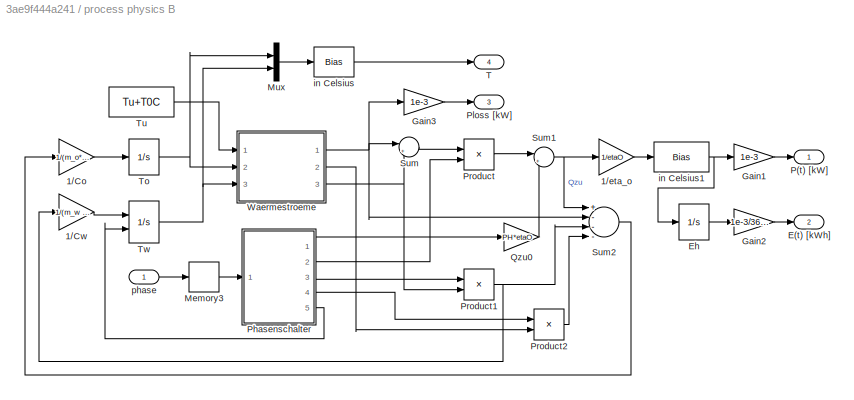
BLOCK [SubSystem] process physics B
  Ports = [1, 4]
  RequestExecContextInheritance = off
  Variant = off
BLOCK [Gain] process physics B/1//Co
  Gain = 1/(m_o*cp_o)
  OutDataTypeStr = Inherit: Inherit via internal rule
  ParamDataTypeStr = Inherit: Inherit via internal rule
  SaturateOnIntegerOverflow = off
BLOCK [Gain] process physics B/1//Cw
  Gain = 1/(m_w *cp_w)
  OutDataTypeStr = Inherit: Inherit via internal rule
  ParamDataTypeStr = Inherit: Inherit via internal rule
  SaturateOnIntegerOverflow = off
BLOCK [Gain] process physics B/1//eta_o
  Gain = 1/etaO
  OutDataTypeStr = Inherit: Inherit via internal rule
  ParamDataTypeStr = Inherit: Inherit via internal rule
  SaturateOnIntegerOverflow = off
BLOCK [Outport] process physics B/E(t) [kWh]
  IconDisplay = Port number
  Port = 2
BLOCK [Integrator] process physics B/Eh
  Ports = [1, 1]
BLOCK [Gain] process physics B/Gain1
  Gain = 1e-3
  OutDataTypeStr = Inherit: Inherit via internal rule
  ParamDataTypeStr = Inherit: Inherit via internal rule
  SaturateOnIntegerOverflow = off
BLOCK [Gain] process physics B/Gain2
  Gain = 1e-3/3600
  OutDataTypeStr = Inherit: Inherit via internal rule
  ParamDataTypeStr = Inherit: Inherit via internal rule
  SaturateOnIntegerOverflow = off
BLOCK [Gain] process physics B/Gain3
  Gain = 1e-3
  OutDataTypeStr = Inherit: Inherit via internal rule
  ParamDataTypeStr = Inherit: Inherit via internal rule
  SaturateOnIntegerOverflow = off
BLOCK [Memory] process physics B/Memory3
  InheritSampleTime = on
BLOCK [Mux] process physics B/Mux
  DisplayOption = bar
  Inputs = 2
  Ports = [2, 1]
BLOCK [Outport] process physics B/P(t) [kW]
  IconDisplay = Port number
BLOCK [SubSystem] process physics B/Phasenschalter
  Ports = [1, 5]
  RequestExecContextInheritance = off
  Variant = off
BLOCK [Reference] process physics B/Phasenschalter/Compare To Constant  REF=simulink/Logic and Bit
Operations/Compare
To Constant
  Ports = [1, 1]
  SourceBlock = simulink/Logic and Bit\nOperations/Compare\nTo Constant
  SourceType = Compare To Constant
BLOCK [Reference] process physics B/Phasenschalter/Compare To Constant1  REF=simulink/Logic and Bit
Operations/Compare
To Constant
  Ports = [1, 1]
  SourceBlock = simulink/Logic and Bit\nOperations/Compare\nTo Constant
  SourceType = Compare To Constant
BLOCK [Reference] process physics B/Phasenschalter/Compare To Constant2  REF=simulink/Logic and Bit
Operations/Compare
To Constant
  Ports = [1, 1]
  SourceBlock = simulink/Logic and Bit\nOperations/Compare\nTo Constant
  SourceType = Compare To Constant
BLOCK [Reference] process physics B/Phasenschalter/Compare To Constant3  REF=simulink/Logic and Bit
Operations/Compare
To Constant
  Ports = [1, 1]
  SourceBlock = simulink/Logic and Bit\nOperations/Compare\nTo Constant
  SourceType = Compare To Constant
BLOCK [DataTypeConversion] process physics B/Phasenschalter/Data Type Conversion
  OutDataTypeStr = double
  RndMeth = Floor
  SaturateOnIntegerOverflow = off
BLOCK [DataTypeConversion] process physics B/Phasenschalter/Data Type Conversion1
  OutDataTypeStr = double
  RndMeth = Floor
  SaturateOnIntegerOverflow = off
BLOCK [DataTypeConversion] process physics B/Phasenschalter/Data Type Conversion2
  OutDataTypeStr = double
  RndMeth = Floor
  SaturateOnIntegerOverflow = off
BLOCK [DataTypeConversion] process physics B/Phasenschalter/Data Type Conversion3
  OutDataTypeStr = double
  RndMeth = Floor
  SaturateOnIntegerOverflow = off
BLOCK [DataTypeConversion] process physics B/Phasenschalter/Data Type Conversion4
  OutDataTypeStr = double
  RndMeth = Floor
  SaturateOnIntegerOverflow = off
BLOCK [Logic] process physics B/Phasenschalter/Logical Operator
  AllPortsSameDT = off
  Operator = OR
  OutDataTypeStr = boolean
  Ports = [2, 1]
BLOCK [Logic] process physics B/Phasenschalter/Logical Operator1
  AllPortsSameDT = off
  Operator = OR
  OutDataTypeStr = boolean
  Ports = [2, 1]
BLOCK [Inport] process physics B/Phasenschalter/phase
  IconDisplay = Port number
BLOCK [Outport] process physics B/Phasenschalter/q1
  IconDisplay = Port number
BLOCK [Outport] process physics B/Phasenschalter/q2
  IconDisplay = Port number
  Port = 2
BLOCK [Outport] process physics B/Phasenschalter/q3
  IconDisplay = Port number
  Port = 3
BLOCK [Outport] process physics B/Phasenschalter/q4
  IconDisplay = Port number
  Port = 4
BLOCK [Outport] process physics B/Phasenschalter/restartTw
  IconDisplay = Port number
  Port = 5
BLOCK [Outport] process physics B/Ploss [kW]
  IconDisplay = Port number
  Port = 3
BLOCK [Product] process physics B/Product
  InputSameDT = off
  OutDataTypeStr = Inherit: Inherit via internal rule
  Ports = [2, 1]
  RndMeth = Floor
  SaturateOnIntegerOverflow = off
BLOCK [Product] process physics B/Product1
  InputSameDT = off
  OutDataTypeStr = Inherit: Inherit via internal rule
  Ports = [2, 1]
  RndMeth = Floor
  SaturateOnIntegerOverflow = off
BLOCK [Product] process physics B/Product2
  InputSameDT = off
  OutDataTypeStr = Inherit: Inherit via internal rule
  Ports = [2, 1]
  RndMeth = Floor
  SaturateOnIntegerOverflow = off
BLOCK [Gain] process physics B/Qzu0
  Gain = PH*etaO
  OutDataTypeStr = Inherit: Inherit via internal rule
  ParamDataTypeStr = Inherit: Inherit via internal rule
  SaturateOnIntegerOverflow = off
BLOCK [Sum] process physics B/Sum
  IconShape = round
  InputSameDT = off
  Inputs = |++
  OutDataTypeStr = Inherit: Inherit via internal rule
  Ports = [2, 1]
  SaturateOnIntegerOverflow = off
BLOCK [Sum] process physics B/Sum1
  IconShape = round
  InputSameDT = off
  Inputs = |++
  OutDataTypeStr = Inherit: Inherit via internal rule
  Ports = [2, 1]
  SaturateOnIntegerOverflow = off
BLOCK [Sum] process physics B/Sum2
  InputSameDT = off
  Inputs = +---
  OutDataTypeStr = Inherit: Inherit via internal rule
  Ports = [4, 1]
  SaturateOnIntegerOverflow = off
BLOCK [Outport] process physics B/T
  IconDisplay = Port number
  Port = 4
BLOCK [Integrator] process physics B/To
  InitialCondition = T_w + T0C
  Ports = [1, 1]
BLOCK [Constant] process physics B/Tu
  Value = Tu+T0C
BLOCK [Integrator] process physics B/Tw
  ExternalReset = rising
  InitialCondition = T_w + T0C
  Ports = [2, 1]
BLOCK [SubSystem] process physics B/Waermestroeme
  Ports = [3, 3]
  RequestExecContextInheritance = off
  Variant = off
BLOCK [Gain] process physics B/Waermestroeme/0.07*epsilon*sigma
  Gain = 0.07*epsilon*sigma
  OutDataTypeStr = Inherit: Inherit via internal rule
  ParamDataTypeStr = Inherit: Inherit via internal rule
  SaturateOnIntegerOverflow = off
BLOCK [Gain] process physics B/Waermestroeme/0.2 alpha
  Gain = 0.2*alpha
  OutDataTypeStr = Inherit: Inherit via internal rule
  ParamDataTypeStr = Inherit: Inherit via internal rule
  SaturateOnIntegerOverflow = off
BLOCK [Constant] process physics B/Waermestroeme/Constant
  Value = 4
BLOCK [Constant] process physics B/Waermestroeme/Constant1
  Value = 4
BLOCK [Constant] process physics B/Waermestroeme/Constant2
  Value = 4
BLOCK [Math] process physics B/Waermestroeme/Math Function
  Operator = pow
  Ports = [2, 1]
BLOCK [Math] process physics B/Waermestroeme/Math Function1
  Operator = pow
  Ports = [2, 1]
BLOCK [Math] process physics B/Waermestroeme/Math Function2
  Operator = pow
  Ports = [2, 1]
BLOCK [Outport] process physics B/Waermestroeme/PLOU
  IconDisplay = Port number
BLOCK [Outport] process physics B/Waermestroeme/POW
  IconDisplay = Port number
  Port = 3
BLOCK [Outport] process physics B/Waermestroeme/PSOU
  IconDisplay = Port number
  Port = 2
BLOCK [Sum] process physics B/Waermestroeme/Sum
  IconShape = round
  InputSameDT = off
  Inputs = |-+
  OutDataTypeStr = Inherit: Inherit via internal rule
  Ports = [2, 1]
  SaturateOnIntegerOverflow = off
BLOCK [Sum] process physics B/Waermestroeme/Sum1
  IconShape = round
  InputSameDT = off
  Inputs = |-+
  OutDataTypeStr = Inherit: Inherit via internal rule
  Ports = [2, 1]
  SaturateOnIntegerOverflow = off
BLOCK [Sum] process physics B/Waermestroeme/Sum2
  IconShape = round
  InputSameDT = off
  Inputs = |++
  OutDataTypeStr = Inherit: Inherit via internal rule
  Ports = [2, 1]
  SaturateOnIntegerOverflow = off
BLOCK [Sum] process physics B/Waermestroeme/Sum3
  IconShape = round
  InputSameDT = off
  Inputs = +-|
  OutDataTypeStr = Inherit: Inherit via internal rule
  Ports = [2, 1]
  SaturateOnIntegerOverflow = off
BLOCK [Sum] process physics B/Waermestroeme/Sum4
  IconShape = round
  InputSameDT = off
  Inputs = +-|
  OutDataTypeStr = Inherit: Inherit via internal rule
  Ports = [2, 1]
  SaturateOnIntegerOverflow = off
BLOCK [Sum] process physics B/Waermestroeme/Sum5
  IconShape = round
  InputSameDT = off
  Inputs = |++
  OutDataTypeStr = Inherit: Inherit via internal rule
  Ports = [2, 1]
  SaturateOnIntegerOverflow = off
BLOCK [Inport] process physics B/Waermestroeme/To
  IconDisplay = Port number
  Port = 2
BLOCK [Inport] process physics B/Waermestroeme/Tu
  IconDisplay = Port number
BLOCK [Inport] process physics B/Waermestroeme/Tw
  IconDisplay = Port number
  Port = 3
BLOCK [Gain] process physics B/Waermestroeme/alpha*Awk
  Gain = alpha*A_w_k
  OutDataTypeStr = Inherit: Inherit via internal rule
  ParamDataTypeStr = Inherit: Inherit via internal rule
  SaturateOnIntegerOverflow = off
BLOCK [Gain] process physics B/Waermestroeme/epsilon*sigma*Aws
  Gain = epsilon*sigma*A_w_s
  OutDataTypeStr = Inherit: Inherit via internal rule
  ParamDataTypeStr = Inherit: Inherit via internal rule
  SaturateOnIntegerOverflow = off
BLOCK [Gain] process physics B/Waermestroeme/kA
  Gain = k_A
  OutDataTypeStr = Inherit: Inherit via internal rule
  ParamDataTypeStr = Inherit: Inherit via internal rule
  SaturateOnIntegerOverflow = off
BLOCK [Bias] process physics B/in Celsius
  Bias = -T0C
  SaturateOnIntegerOverflow = off
BLOCK [Bias] process physics B/in Celsius1
  Bias = Pgrund
  SaturateOnIntegerOverflow = off
BLOCK [Inport] process physics B/phase
  IconDisplay = Port number
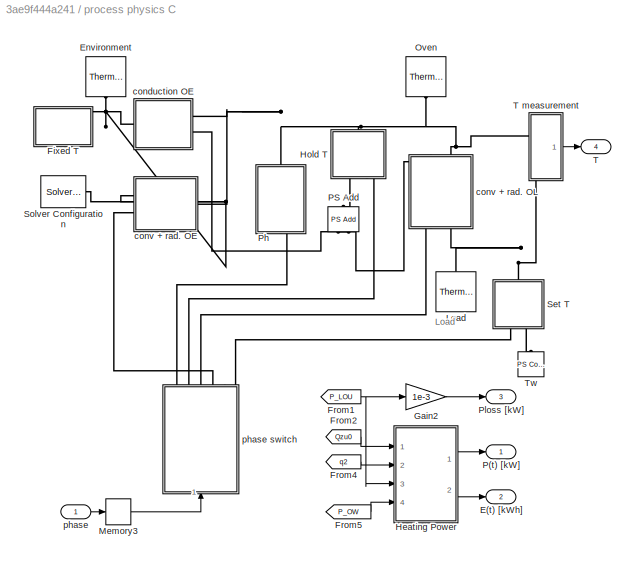
BLOCK [SubSystem] process physics C
  Ports = [1, 4]
  RequestExecContextInheritance = off
  Variant = off
BLOCK [Outport] process physics C/E(t) [kWh]
  IconDisplay = Port number
  Port = 2
BLOCK [Reference] process physics C/Environment  REF=fl_lib/Thermal/Thermal Elements/Thermal Mass
  Ports = [0, 0, 0, 0, 0, 1]
  SourceBlock = fl_lib/Thermal/Thermal Elements/Thermal Mass
  SourceType = Thermal Mass
BLOCK [SubSystem] process physics C/Fixed T
  Ports = [0, 0, 0, 0, 0, 0, 1]
  RequestExecContextInheritance = off
  Variant = off
BLOCK [Reference] process physics C/Fixed T/Conductive Heat Transfer10  REF=fl_lib/Thermal/Thermal Elements/Conductive Heat
Transfer
  Ports = [0, 0, 0, 0, 0, 1, 1]
  SourceBlock = fl_lib/Thermal/Thermal Elements/Conductive Heat\nTransfer
  SourceType = Conductive Heat\nTransfer
BLOCK [Reference] process physics C/Fixed T/Ideal Temperature Source  REF=fl_lib/Thermal/Thermal Sources/Ideal Temperature
Source
  Ports = [0, 0, 0, 0, 0, 1, 2]
  SourceBlock = fl_lib/Thermal/Thermal Sources/Ideal Temperature\nSource
  SourceType = Ideal Temperature\nSource
BLOCK [Reference] process physics C/Fixed T/PS Constant  REF=fl_lib/Physical Signals/Sources/PS Constant
  Ports = [0, 0, 0, 0, 0, 0, 1]
  SourceBlock = fl_lib/Physical Signals/Sources/PS Constant
  SourceType = PS Constant
BLOCK [PMIOPort] process physics C/Fixed T/Port
  Port = 1
  Side = Right
BLOCK [Reference] process physics C/Fixed T/Thermal Reference  REF=fl_lib/Thermal/Thermal Elements/Thermal Reference
  Ports = [0, 0, 0, 0, 0, 1]
  SourceBlock = fl_lib/Thermal/Thermal Elements/Thermal Reference
  SourceType = Thermal Reference
BLOCK [From] process physics C/From1
  GotoTag = P_LOU
  TagVisibility = global
BLOCK [From] process physics C/From2
  GotoTag = Qzu0
  TagVisibility = global
BLOCK [From] process physics C/From4
  GotoTag = q2
  TagVisibility = global
BLOCK [From] process physics C/From5
  GotoTag = P_OW
  TagVisibility = global
BLOCK [Gain] process physics C/Gain2
  Gain = 1e-3
  OutDataTypeStr = Inherit: Inherit via internal rule
  ParamDataTypeStr = Inherit: Inherit via internal rule
  SaturateOnIntegerOverflow = off
BLOCK [SubSystem] process physics C/Heating Power
  Ports = [4, 2]
  RequestExecContextInheritance = off
  Variant = off
BLOCK [Gain] process physics C/Heating Power/1//eta_o
  Gain = 1/etaO
  OutDataTypeStr = Inherit: Inherit via internal rule
  ParamDataTypeStr = Inherit: Inherit via internal rule
  SaturateOnIntegerOverflow = off
BLOCK [Outport] process physics C/Heating Power/E(t) [kWh]
  IconDisplay = Port number
  Port = 2
BLOCK [Integrator] process physics C/Heating Power/Eh
  Ports = [1, 1]
BLOCK [Gain] process physics C/Heating Power/Gain1
  Gain = 1e-3
  OutDataTypeStr = Inherit: Inherit via internal rule
  ParamDataTypeStr = Inherit: Inherit via internal rule
  SaturateOnIntegerOverflow = off
BLOCK [Gain] process physics C/Heating Power/Gain2
  Gain = 1e-3/3600
  OutDataTypeStr = Inherit: Inherit via internal rule
  ParamDataTypeStr = Inherit: Inherit via internal rule
  SaturateOnIntegerOverflow = off
BLOCK [Outport] process physics C/Heating Power/P(t) [kW]
  IconDisplay = Port number
BLOCK [Inport] process physics C/Heating Power/P_LOU
  IconDisplay = Port number
  Port = 3
BLOCK [Inport] process physics C/Heating Power/P_OW
  IconDisplay = Port number
  Port = 4
BLOCK [Product] process physics C/Heating Power/Product
  InputSameDT = off
  OutDataTypeStr = Inherit: Inherit via internal rule
  Ports = [2, 1]
  RndMeth = Floor
  SaturateOnIntegerOverflow = off
BLOCK [Inport] process physics C/Heating Power/Qzu0
  IconDisplay = Port number
BLOCK [Sum] process physics C/Heating Power/Sum2
  IconShape = round
  InputSameDT = off
  Inputs = |++
  OutDataTypeStr = Inherit: Inherit via internal rule
  Ports = [2, 1]
  SaturateOnIntegerOverflow = off
BLOCK [Sum] process physics C/Heating Power/Sum3
  IconShape = round
  InputSameDT = off
  Inputs = |++
  OutDataTypeStr = Inherit: Inherit via internal rule
  Ports = [2, 1]
  SaturateOnIntegerOverflow = off
BLOCK [Bias] process physics C/Heating Power/in Celsius1
  Bias = Pgrund
  SaturateOnIntegerOverflow = off
BLOCK [Inport] process physics C/Heating Power/q2
  IconDisplay = Port number
  Port = 2
BLOCK [SubSystem] process physics C/Hold T
  Ports = [0, 0, 0, 0, 0, 2, 1]
  RequestExecContextInheritance = off
  Variant = off
BLOCK [Reference] process physics C/Hold T/Ideal Heat Flow Source  REF=fl_lib/Thermal/Thermal Sources/Ideal Heat Flow
Source
  Ports = [0, 0, 0, 0, 0, 1, 2]
  SourceBlock = fl_lib/Thermal/Thermal Sources/Ideal Heat Flow\nSource
  SourceType = Ideal Heat Flow\nSource
BLOCK [Reference] process physics C/Hold T/PS Product  REF=fl_lib/Physical Signals/Functions/PS Product
  Ports = [0, 0, 0, 0, 0, 2, 1]
  SourceBlock = fl_lib/Physical Signals/Functions/PS Product
  SourceType = PS Product
BLOCK [PMIOPort] process physics C/Hold T/Port
  Port = 1
  Side = Right
BLOCK [PMIOPort] process physics C/Hold T/Qzu
  Port = 2
  Side = Left
BLOCK [Reference] process physics C/Hold T/Thermal Reference1  REF=fl_lib/Thermal/Thermal Elements/Thermal Reference
  Ports = [0, 0, 0, 0, 0, 1]
  SourceBlock = fl_lib/Thermal/Thermal Elements/Thermal Reference
  SourceType = Thermal Reference
BLOCK [PMIOPort] process physics C/Hold T/control
  Port = 3
  Side = Left
BLOCK [Reference] process physics C/Load  REF=fl_lib/Thermal/Thermal Elements/Thermal Mass
  Ports = [0, 0, 0, 0, 0, 1]
  SourceBlock = fl_lib/Thermal/Thermal Elements/Thermal Mass
  SourceType = Thermal Mass
BLOCK [Memory] process physics C/Memory3
  InheritSampleTime = on
BLOCK [Reference] process physics C/Oven  REF=fl_lib/Thermal/Thermal Elements/Thermal Mass
  Ports = [0, 0, 0, 0, 0, 1]
  SourceBlock = fl_lib/Thermal/Thermal Elements/Thermal Mass
  SourceType = Thermal Mass
BLOCK [Outport] process physics C/P(t) [kW]
  IconDisplay = Port number
BLOCK [Reference] process physics C/PS Add  REF=fl_lib/Physical Signals/Functions/PS Add
  Ports = [0, 0, 0, 0, 0, 2, 1]
  SourceBlock = fl_lib/Physical Signals/Functions/PS Add
  SourceType = PS Add
BLOCK [SubSystem] process physics C/Ph
  Ports = [0, 0, 0, 0, 0, 1, 1]
  RequestExecContextInheritance = off
  Variant = off
BLOCK [Goto] process physics C/Ph/Goto1
  GotoTag = Qzu0
  TagVisibility = global
BLOCK [Reference] process physics C/Ph/Ideal Heat Flow Sensor1  REF=fl_lib/Thermal/Thermal Sensors/Ideal Heat Flow
Sensor
  Ports = [0, 0, 0, 0, 0, 1, 2]
  SourceBlock = fl_lib/Thermal/Thermal Sensors/Ideal Heat Flow\nSensor
  SourceType = Ideal Heat Flow\nSensor
BLOCK [Reference] process physics C/Ph/Ideal Heat Flow Source  REF=fl_lib/Thermal/Thermal Sources/Ideal Heat Flow
Source
  Ports = [0, 0, 0, 0, 0, 1, 2]
  SourceBlock = fl_lib/Thermal/Thermal Sources/Ideal Heat Flow\nSource
  SourceType = Ideal Heat Flow\nSource
BLOCK [PMIOPort] process physics C/Ph/Oven
  Port = 1
  Side = Right
BLOCK [Reference] process physics C/Ph/PS-Simulink Converter  REF=nesl_utility/PS-Simulink
Converter
  Ports = [0, 1, 0, 0, 0, 1]
  SourceBlock = nesl_utility/PS-Simulink\nConverter
  SourceType = PS-Simulink\nConverter
BLOCK [Reference] process physics C/Ph/Qzu0  REF=fl_lib/Physical Signals/Functions/PS Gain
  Ports = [0, 0, 0, 0, 0, 1, 1]
  SourceBlock = fl_lib/Physical Signals/Functions/PS Gain
  SourceType = PS Gain
BLOCK [Reference] process physics C/Ph/Thermal Reference1  REF=fl_lib/Thermal/Thermal Elements/Thermal Reference
  Ports = [0, 0, 0, 0, 0, 1]
  SourceBlock = fl_lib/Thermal/Thermal Elements/Thermal Reference
  SourceType = Thermal Reference
BLOCK [PMIOPort] process physics C/Ph/control
  Port = 2
  Side = Left
BLOCK [Outport] process physics C/Ploss [kW]
  IconDisplay = Port number
  Port = 3
BLOCK [SubSystem] process physics C/Set T
  Ports = [0, 0, 0, 0, 0, 2, 1]
  RequestExecContextInheritance = off
  Variant = off
BLOCK [Reference] process physics C/Set T/Perfect Insulator  REF=fl_lib/Thermal/Thermal Elements/Perfect Insulator
  Ports = [0, 0, 0, 0, 0, 1]
  SourceBlock = fl_lib/Thermal/Thermal Elements/Perfect Insulator
  SourceType = Perfect Insulator
BLOCK [PMIOPort] process physics C/Set T/Port
  Port = 1
  Side = Right
BLOCK [PMIOPort] process physics C/Set T/T
  Port = 3
  Side = Left
BLOCK [SubSystem] process physics C/Set T/Tfix
  Ports = [0, 0, 0, 0, 0, 1, 1]
  RequestExecContextInheritance = off
  Variant = off
BLOCK [Reference] process physics C/Set T/Tfix/Conductive Heat Transfer10  REF=fl_lib/Thermal/Thermal Elements/Conductive Heat
Transfer
  Ports = [0, 0, 0, 0, 0, 1, 1]
  SourceBlock = fl_lib/Thermal/Thermal Elements/Conductive Heat\nTransfer
  SourceType = Conductive Heat\nTransfer
BLOCK [Reference] process physics C/Set T/Tfix/Ideal Temperature Source  REF=fl_lib/Thermal/Thermal Sources/Ideal Temperature
Source
  Ports = [0, 0, 0, 0, 0, 1, 2]
  SourceBlock = fl_lib/Thermal/Thermal Sources/Ideal Temperature\nSource
  SourceType = Ideal Temperature\nSource
BLOCK [PMIOPort] process physics C/Set T/Tfix/Port
  Port = 2
  Side = Right
BLOCK [PMIOPort] process physics C/Set T/Tfix/T
  Port = 1
  Side = Left
BLOCK [Reference] process physics C/Set T/Tfix/Thermal Reference  REF=fl_lib/Thermal/Thermal Elements/Thermal Reference
  Ports = [0, 0, 0, 0, 0, 1]
  SourceBlock = fl_lib/Thermal/Thermal Elements/Thermal Reference
  SourceType = Thermal Reference
BLOCK [Reference] process physics C/Set T/ThermoSwitch  REF=PJPhysLib_lib/ThermoSwitch
  Ports = [0, 0, 0, 0, 0, 3, 1]
  SourceBlock = PJPhysLib_lib/ThermoSwitch
  SourceType = ThermoSwitch
BLOCK [PMIOPort] process physics C/Set T/control
  Port = 2
  Side = Left
BLOCK [Reference] process physics C/Solver Configuration  REF=nesl_utility/Solver
Configuration
  Ports = [0, 0, 0, 0, 0, 0, 1]
  SourceBlock = nesl_utility/Solver\nConfiguration
  SourceType = Solver\nConfiguration
BLOCK [Outport] process physics C/T
  IconDisplay = Port number
  Port = 4
BLOCK [SubSystem] process physics C/T measurement
  Ports = [0, 1, 0, 0, 0, 2]
  RequestExecContextInheritance = off
  Variant = off
BLOCK [PMIOPort] process physics C/T measurement/Conn1
  Port = 1
  Side = Left
BLOCK [PMIOPort] process physics C/T measurement/Conn2
  Port = 2
  Side = Left
BLOCK [Mux] process physics C/T measurement/Mux
  DisplayOption = bar
  Inputs = 2
  Ports = [2, 1]
BLOCK [Outport] process physics C/T measurement/Out1
  IconDisplay = Port number
BLOCK [SubSystem] process physics C/T measurement/T sensor 1
  Ports = [0, 1, 0, 0, 0, 1]
  RequestExecContextInheritance = off
  Variant = off
BLOCK [Reference] process physics C/T measurement/T sensor 1/Ideal Temperature Sensor1  REF=fl_lib/Thermal/Thermal Sensors/Ideal Temperature
Sensor
  Ports = [0, 0, 0, 0, 0, 1, 2]
  SourceBlock = fl_lib/Thermal/Thermal Sensors/Ideal Temperature\nSensor
  SourceType = Ideal Temperature\nSensor
BLOCK [Reference] process physics C/T measurement/T sensor 1/PS-Simulink Converter  REF=nesl_utility/PS-Simulink
Converter
  Ports = [0, 1, 0, 0, 0, 1]
  SourceBlock = nesl_utility/PS-Simulink\nConverter
  SourceType = PS-Simulink\nConverter
BLOCK [PMIOPort] process physics C/T measurement/T sensor 1/Port
  Port = 1
  Side = Left
BLOCK [Outport] process physics C/T measurement/T sensor 1/T
  IconDisplay = Port number
BLOCK [Reference] process physics C/T measurement/T sensor 1/Thermal Reference1  REF=fl_lib/Thermal/Thermal Elements/Thermal Reference
  Ports = [0, 0, 0, 0, 0, 1]
  SourceBlock = fl_lib/Thermal/Thermal Elements/Thermal Reference
  SourceType = Thermal Reference
BLOCK [SubSystem] process physics C/T measurement/T sensor 2
  Ports = [0, 1, 0, 0, 0, 1]
  RequestExecContextInheritance = off
  Variant = off
BLOCK [Reference] process physics C/T measurement/T sensor 2/Ideal Temperature Sensor1  REF=fl_lib/Thermal/Thermal Sensors/Ideal Temperature
Sensor
  Ports = [0, 0, 0, 0, 0, 1, 2]
  SourceBlock = fl_lib/Thermal/Thermal Sensors/Ideal Temperature\nSensor
  SourceType = Ideal Temperature\nSensor
BLOCK [Reference] process physics C/T measurement/T sensor 2/PS-Simulink Converter  REF=nesl_utility/PS-Simulink
Converter
  Ports = [0, 1, 0, 0, 0, 1]
  SourceBlock = nesl_utility/PS-Simulink\nConverter
  SourceType = PS-Simulink\nConverter
BLOCK [PMIOPort] process physics C/T measurement/T sensor 2/Port
  Port = 1
  Side = Left
BLOCK [Outport] process physics C/T measurement/T sensor 2/T
  IconDisplay = Port number
BLOCK [Reference] process physics C/T measurement/T sensor 2/Thermal Reference1  REF=fl_lib/Thermal/Thermal Elements/Thermal Reference
  Ports = [0, 0, 0, 0, 0, 1]
  SourceBlock = fl_lib/Thermal/Thermal Elements/Thermal Reference
  SourceType = Thermal Reference
BLOCK [Bias] process physics C/T measurement/to Celsius
  Bias = -T0C
  SaturateOnIntegerOverflow = off
BLOCK [Reference] process physics C/Tw  REF=fl_lib/Physical Signals/Sources/PS Constant
  Ports = [0, 0, 0, 0, 0, 0, 1]
  SourceBlock = fl_lib/Physical Signals/Sources/PS Constant
  SourceType = PS Constant
BLOCK [SubSystem] process physics C/conduction OE
  Ports = [0, 0, 0, 0, 0, 1, 2]
  RequestExecContextInheritance = off
  Variant = off
BLOCK [Reference] process physics C/conduction OE/Conductive Heat Transfer  REF=fl_lib/Thermal/Thermal Elements/Conductive Heat
Transfer
  Ports = [0, 0, 0, 0, 0, 1, 1]
  SourceBlock = fl_lib/Thermal/Thermal Elements/Conductive Heat\nTransfer
  SourceType = Conductive Heat\nTransfer
BLOCK [PMIOPort] process physics C/conduction OE/Env
  Port = 1
  Side = Left
BLOCK [Goto] process physics C/conduction OE/Goto2
  GotoTag = P_LOU
  TagVisibility = global
BLOCK [Reference] process physics C/conduction OE/Ideal Heat Flow Sensor1  REF=fl_lib/Thermal/Thermal Sensors/Ideal Heat Flow
Sensor
  Ports = [0, 0, 0, 0, 0, 1, 2]
  SourceBlock = fl_lib/Thermal/Thermal Sensors/Ideal Heat Flow\nSensor
  SourceType = Ideal Heat Flow\nSensor
BLOCK [PMIOPort] process physics C/conduction OE/Oven
  Port = 2
  Side = Right
BLOCK [Reference] process physics C/conduction OE/PS-Simulink Converter  REF=nesl_utility/PS-Simulink
Converter
  Ports = [0, 1, 0, 0, 0, 1]
  SourceBlock = nesl_utility/PS-Simulink\nConverter
  SourceType = PS-Simulink\nConverter
BLOCK [PMIOPort] process physics C/conduction OE/P_LOU
  Port = 3
  Side = Right
BLOCK [SubSystem] process physics C/conv + rad. OE
  Ports = [0, 0, 0, 0, 0, 2, 1]
  RequestExecContextInheritance = off
  Variant = off
BLOCK [Reference] process physics C/conv + rad. OE/Convective Heat Transfer  REF=fl_lib/Thermal/Thermal Elements/Convective Heat
Transfer
  Ports = [0, 0, 0, 0, 0, 1, 1]
  SourceBlock = fl_lib/Thermal/Thermal Elements/Convective Heat\nTransfer
  SourceType = Convective Heat\nTransfer
BLOCK [PMIOPort] process physics C/conv + rad. OE/Env
  Port = 2
  Side = Left
BLOCK [PMIOPort] process physics C/conv + rad. OE/Oven
  Port = 1
  Side = Right
BLOCK [Reference] process physics C/conv + rad. OE/Perfect Insulator  REF=fl_lib/Thermal/Thermal Elements/Perfect Insulator
  Ports = [0, 0, 0, 0, 0, 1]
  SourceBlock = fl_lib/Thermal/Thermal Elements/Perfect Insulator
  SourceType = Perfect Insulator
BLOCK [Reference] process physics C/conv + rad. OE/Radiative Heat Transfer  REF=fl_lib/Thermal/Thermal Elements/Radiative Heat
Transfer
  Ports = [0, 0, 0, 0, 0, 1, 1]
  SourceBlock = fl_lib/Thermal/Thermal Elements/Radiative Heat\nTransfer
  SourceType = Radiative Heat\nTransfer
BLOCK [Reference] process physics C/conv + rad. OE/ThermoSwitch  REF=PJPhysLib_lib/ThermoSwitch
  Ports = [0, 0, 0, 0, 0, 3, 1]
  SourceBlock = PJPhysLib_lib/ThermoSwitch
  SourceType = ThermoSwitch
BLOCK [PMIOPort] process physics C/conv + rad. OE/control
  Port = 3
  Side = Left
BLOCK [SubSystem] process physics C/conv + rad. OL
  Ports = [0, 0, 0, 0, 0, 2, 2]
  RequestExecContextInheritance = off
  Variant = off
BLOCK [Reference] process physics C/conv + rad. OL/Convective Heat Transfer  REF=fl_lib/Thermal/Thermal Elements/Convective Heat
Transfer
  Ports = [0, 0, 0, 0, 0, 1, 1]
  SourceBlock = fl_lib/Thermal/Thermal Elements/Convective Heat\nTransfer
  SourceType = Convective Heat\nTransfer
BLOCK [Goto] process physics C/conv + rad. OL/Goto2
  GotoTag = P_OW
  TagVisibility = global
BLOCK [Reference] process physics C/conv + rad. OL/Ideal Heat Flow Sensor  REF=fl_lib/Thermal/Thermal Sensors/Ideal Heat Flow
Sensor
  Ports = [0, 0, 0, 0, 0, 1, 2]
  SourceBlock = fl_lib/Thermal/Thermal Sensors/Ideal Heat Flow\nSensor
  SourceType = Ideal Heat Flow\nSensor
BLOCK [PMIOPort] process physics C/conv + rad. OL/Load
  Port = 4
  Side = Left
BLOCK [PMIOPort] process physics C/conv + rad. OL/Oven
  Port = 2
  Side = Right
BLOCK [Reference] process physics C/conv + rad. OL/PS-Simulink Converter  REF=nesl_utility/PS-Simulink
Converter
  Ports = [0, 1, 0, 0, 0, 1]
  SourceBlock = nesl_utility/PS-Simulink\nConverter
  SourceType = PS-Simulink\nConverter
BLOCK [PMIOPort] process physics C/conv + rad. OL/P_OW
  Port = 1
  Side = Right
BLOCK [Reference] process physics C/conv + rad. OL/Perfect Insulator  REF=fl_lib/Thermal/Thermal Elements/Perfect Insulator
  Ports = [0, 0, 0, 0, 0, 1]
  SourceBlock = fl_lib/Thermal/Thermal Elements/Perfect Insulator
  SourceType = Perfect Insulator
BLOCK [Reference] process physics C/conv + rad. OL/Radiative Heat Transfer  REF=fl_lib/Thermal/Thermal Elements/Radiative Heat
Transfer
  Ports = [0, 0, 0, 0, 0, 1, 1]
  SourceBlock = fl_lib/Thermal/Thermal Elements/Radiative Heat\nTransfer
  SourceType = Radiative Heat\nTransfer
BLOCK [Reference] process physics C/conv + rad. OL/ThermoSwitch  REF=PJPhysLib_lib/ThermoSwitch
  Ports = [0, 0, 0, 0, 0, 3, 1]
  SourceBlock = PJPhysLib_lib/ThermoSwitch
  SourceType = ThermoSwitch
BLOCK [PMIOPort] process physics C/conv + rad. OL/control
  Port = 3
  Side = Left
BLOCK [Inport] process physics C/phase
  IconDisplay = Port number
BLOCK [SubSystem] process physics C/phase switch
  Ports = [1, 0, 0, 0, 0, 0, 5]
  RequestExecContextInheritance = off
  Variant = off
BLOCK [Reference] process physics C/phase switch/Compare To Constant  REF=simulink/Logic and Bit
Operations/Compare
To Constant
  Ports = [1, 1]
  SourceBlock = simulink/Logic and Bit\nOperations/Compare\nTo Constant
  SourceType = Compare To Constant
BLOCK [Reference] process physics C/phase switch/Compare To Constant1  REF=simulink/Logic and Bit
Operations/Compare
To Constant
  Ports = [1, 1]
  SourceBlock = simulink/Logic and Bit\nOperations/Compare\nTo Constant
  SourceType = Compare To Constant
BLOCK [Reference] process physics C/phase switch/Compare To Constant2  REF=simulink/Logic and Bit
Operations/Compare
To Constant
  Ports = [1, 1]
  SourceBlock = simulink/Logic and Bit\nOperations/Compare\nTo Constant
  SourceType = Compare To Constant
BLOCK [Reference] process physics C/phase switch/Compare To Constant3  REF=simulink/Logic and Bit
Operations/Compare
To Constant
  Ports = [1, 1]
  SourceBlock = simulink/Logic and Bit\nOperations/Compare\nTo Constant
  SourceType = Compare To Constant
BLOCK [DataTypeConversion] process physics C/phase switch/Data Type Conversion
  OutDataTypeStr = double
  RndMeth = Floor
  SaturateOnIntegerOverflow = off
BLOCK [DataTypeConversion] process physics C/phase switch/Data Type Conversion1
  OutDataTypeStr = double
  RndMeth = Floor
  SaturateOnIntegerOverflow = off
BLOCK [DataTypeConversion] process physics C/phase switch/Data Type Conversion2
  OutDataTypeStr = double
  RndMeth = Floor
  SaturateOnIntegerOverflow = off
BLOCK [DataTypeConversion] process physics C/phase switch/Data Type Conversion3
  OutDataTypeStr = double
  RndMeth = Floor
  SaturateOnIntegerOverflow = off
BLOCK [DataTypeConversion] process physics C/phase switch/Data Type Conversion4
  OutDataTypeStr = double
  RndMeth = Floor
  SaturateOnIntegerOverflow = off
BLOCK [Goto] process physics C/phase switch/Goto
  GotoTag = q2
  TagVisibility = global
BLOCK [Logic] process physics C/phase switch/Logical Operator
  AllPortsSameDT = off
  Operator = OR
  OutDataTypeStr = boolean
  Ports = [2, 1]
BLOCK [Logic] process physics C/phase switch/Logical Operator1
  AllPortsSameDT = off
  Operator = OR
  OutDataTypeStr = boolean
  Ports = [2, 1]
BLOCK [Reference] process physics C/phase switch/Simulink-PS Converter  REF=nesl_utility/Simulink-PS
Converter
  Ports = [1, 0, 0, 0, 0, 0, 1]
  SourceBlock = nesl_utility/Simulink-PS\nConverter
  SourceType = Simulink-PS\nConverter
BLOCK [Reference] process physics C/phase switch/Simulink-PS Converter1  REF=nesl_utility/Simulink-PS
Converter
  Ports = [1, 0, 0, 0, 0, 0, 1]
  SourceBlock = nesl_utility/Simulink-PS\nConverter
  SourceType = Simulink-PS\nConverter
BLOCK [Reference] process physics C/phase switch/Simulink-PS Converter2  REF=nesl_utility/Simulink-PS
Converter
  Ports = [1, 0, 0, 0, 0, 0, 1]
  SourceBlock = nesl_utility/Simulink-PS\nConverter
  SourceType = Simulink-PS\nConverter
BLOCK [Reference] process physics C/phase switch/Simulink-PS Converter3  REF=nesl_utility/Simulink-PS
Converter
  Ports = [1, 0, 0, 0, 0, 0, 1]
  SourceBlock = nesl_utility/Simulink-PS\nConverter
  SourceType = Simulink-PS\nConverter
BLOCK [Reference] process physics C/phase switch/Simulink-PS Converter4  REF=nesl_utility/Simulink-PS
Converter
  Ports = [1, 0, 0, 0, 0, 0, 1]
  SourceBlock = nesl_utility/Simulink-PS\nConverter
  SourceType = Simulink-PS\nConverter
BLOCK [PMIOPort] process physics C/phase switch/door open
  Port = 4
  Side = Right
BLOCK [PMIOPort] process physics C/phase switch/full heating
  Port = 1
  Side = Right
BLOCK [PMIOPort] process physics C/phase switch/heating parts
  Port = 3
  Side = Right
BLOCK [PMIOPort] process physics C/phase switch/holding To
  Port = 2
  Side = Right
BLOCK [Inport] process physics C/phase switch/phase
  IconDisplay = Port number
BLOCK [PMIOPort] process physics C/phase switch/restart Tw
  Port = 5
  Side = Right
BLOCK [FIFOQueue] queue
  Capacity = inf
  Ports = [0, 0, 0, 0, 0, 1, 1]
BLOCK [SubSystem] sink
  Ports = [0, 0, 0, 0, 0, 1]
  RequestExecContextInheritance = off
  Variant = off
BLOCK [Constant] sink/Constant
  Value = nParts
BLOCK [EntitySink] sink/Entity Sink
  OutputPortMap = o0
  Ports = [0, 1, 0, 0, 0, 1]
  StatNumberArrived = on
BLOCK [EventToTimedSignal] sink/Event to Timed Signal
  InputPortMap = u0
  OutputPortMap = o0
  Ports = [1, 1]
BLOCK [PMIOPort] sink/IN
  Port = 1
  Side = Left
BLOCK [RelationalOperator] sink/Relational Operator
  InputSameDT = off
  Operator = ==
  OutDataTypeStr = boolean
  Ports = [2, 1]
BLOCK [Stop] sink/Stop Simulation
BLOCK [SubSystem] source
  Ports = [0, 0, 0, 0, 0, 0, 1]
  RequestExecContextInheritance = off
  Variant = off
BLOCK [SubSystem] source/Attribute Function
  CopyFcn = des.afb.attributefunction_support(gcb,'CopyFcn');
  ErrorFcn = des.afb.error_redirect
  LoadFcn = des.afb.attributefunction_support(gcb,'LoadFcn');
  MaskHideContents = on
  OpenFcn = des.afb.attributefunction_support(gcb,'OpenFcn');
  Ports = [0, 0, 0, 0, 0, 1, 1]
  RequestExecContextInheritance = off
  StartFcn = des.afb.attributefunction_support(gcb,'StartFcn');
  Variant = off
BLOCK [PMIOPort] source/Attribute Function/IN
  Port = 1
  Side = Left
BLOCK [SubSystem] source/Attribute Function/MATLAB Function
  ErrorFcn = Stateflow.Translate.translate
  PermitHierarchicalResolution = ExplicitOnly
  Ports = [2, 1, 0, 1]
  RequestExecContextInheritance = off
  SFBlockType = MATLAB Function
  TreatAsAtomicUnit = on
  Variant = off
BLOCK [Demux] source/Attribute Function/MATLAB Function/ Demux 
  Outputs = 1
  Ports = [1, 1]
BLOCK [S-Function] source/Attribute Function/MATLAB Function/ SFunction 
  EnableBusSupport = off
  FunctionName = sf_sfun
  PortCounts = [3 2]
  Ports = [3, 2]
  SFunctionDeploymentMode = off
  Tag = Stateflow S-Function ovenLib 1
BLOCK [Terminator] source/Attribute Function/MATLAB Function/ Terminator 
BLOCK [Inport] source/Attribute Function/MATLAB Function/nr_wp
  IconDisplay = Port number
  Port = 2
BLOCK [Outport] source/Attribute Function/MATLAB Function/out_port
  IconDisplay = Port number
BLOCK [Inport] source/Attribute Function/MATLAB Function/part_no
  IconDisplay = Port number
BLOCK [TriggerPort] source/Attribute Function/MATLAB Function/trigger
  Ports = [0, 1]
  ShowOutputPort = on
  TriggerType = function-call
  VariantControl = Variant
BLOCK [PMIOPort] source/Attribute Function/OUT
  Port = 2
  Side = Right
BLOCK [EntityDepartureFunctionCallGenerator] source/Attribute Function/__DMLF__EDE2FCE__
  IsInsideAFB = on
  OutputPortMap = o0
  Ports = [0, 1, 0, 0, 0, 1, 1]
  TimingFunctionCallF1 = Before entity departure
BLOCK [GetAttribute] source/Attribute Function/__DMLF__GA__
  AttributeDefaultValue = 1|1
  AttributeMissing = Error|Error
  AttributeName = part_no|nr_wp
  AttributeSendTiming = Before entity departure|Before entity departure
  AttributeTreatAsVector = 1|1
  EvaluatedDefaultAttributeValue = { [];[]}
  IsInsideAFB = on
  OutputPortMap = o1,o2
  Ports = [0, 2, 0, 0, 0, 1, 1]
BLOCK [SetAttribute] source/Attribute Function/__DMLF__SA__
  AttributeFrom = Signal port
  AttributeName = port
  EvaluatedAttributeValue = { []}
  InputPortMap = u0
  IsInsideAFB = on
  Ports = [1, 0, 0, 0, 0, 1, 1]
BLOCK [Constant] source/Constant
  Value = nParts
BLOCK [Constant] source/Constant1
  Value = htz
BLOCK [Constant] source/Constant2
  Value = parts
BLOCK [EntityDepartureCounter] source/Entity Departure Counter
  NumberDepartedAttributeName = part_no
  Ports = [0, 0, 0, 0, 0, 1, 1]
BLOCK [EntitySink] source/Entity Sink
  AvailableForArrivals = off
  Ports = [0, 0, 0, 0, 0, 1]
BLOCK [PMIOPort] source/OUT
  Port = 1
  Side = Right
BLOCK [OutputSwitch] source/Output Switch
  AttributeName = port
  NumberOutputPorts = 2
  Ports = [0, 0, 0, 0, 0, 1, 2]
  SwitchingCriterion = From attribute
BLOCK [SetAttribute] source/Set Attribute
  AttributeFrom = Signal port
  AttributeName = nr_wp
  EvaluatedAttributeValue = { []}
  InputPortMap = u0
  Ports = [1, 0, 0, 0, 0, 1, 1]
BLOCK [SetAttribute] source/Set Attribute1
  AttributeFrom = Signal port|Signal port
  AttributeName = htz|parts
  AttributeTreatAsVector = 1|1
  AttributeValue = 1|1
  EvaluatedAttributeValue = { [];[]}
  InputPortMap = u0,u1
  Ports = [2, 0, 0, 0, 0, 1, 1]
BLOCK [SingleServer] source/Single Server1
  Ports = [0, 0, 0, 0, 0, 1, 1]
  ServiceTime = 0
BLOCK [TimeBasedEntityGenerator] source/Time-Based Entity Generator
  Period = period
  Ports = [0, 0, 0, 0, 0, 0, 1]
BLOCK [SubSystem] toSignal
  Ports = [1, 1]
  RequestExecContextInheritance = off
  Variant = off
BLOCK [Inport] toSignal/In
  IconDisplay = Port number
BLOCK [Outport] toSignal/Out
  IconDisplay = Port number
BLOCK [EventToTimedSignal] toSignal/toSIgnal
  InputPortMap = u0
  OutputPortMap = o0
  Ports = [1, 1]
ANNOTATION process physics C: Load
LINE material flow A/N-Server:1 -> material flow A/#EntitiesOut:1
LINE material flow A/N-Server:2 -> material flow A/#EntitiesInBlock:1
LINE material flow A/N-Server:3 -> material flow A/avarageWaitingTime:1
LINE material flow A/N-Server:4 -> material flow A/blockUtilization:1
LINE material flow A/leaving:1 -> material flow A/Release Gate:1
LINE material flow B/Compare To Constant1:1 -> material flow B/Gate:2
LINE material flow B/Compare To Constant2:1 -> material flow B/Gate:1
LINE material flow B/Gate/Constant1:1 -> material flow B/Gate/Sum:1
LINE material flow B/Gate/Constant:1 -> material flow B/Gate/Signal Latch:3
LINE material flow B/Gate/Signal Latch:1 -> material flow B/Gate/Sum:2
LINE material flow B/Gate/Sum:1 -> material flow B/Gate/Enabled Gate1:1
LINE material flow B/Gate/close:1 -> material flow B/Gate/Signal Latch:1
LINE material flow B/Gate/open:1 -> material flow B/Gate/Signal Latch:2
LINE material flow B/Input Tray:1 -> material flow B/Compare To Constant2:1
LINE material flow B/N-Server:1 -> material flow B/nout:1
NET material flow B/N-Server:2 -> material flow B/Compare To Constant1:1, material flow B/nblock:1
LINE material flow B/N-Server:3 -> material flow B/avg. wait:1
LINE material flow B/N-Server:4 -> material flow B/util:1
LINE material flow B/leaving:1 -> material flow B/Release Gate:1
LINE process control A/Constant1:1 -> process control A/MinMax:1
LINE process control A/Event to Timed Signal1:1 -> process control A/phase:1
LINE process control A/MinMax:1 -> process control A/Event to Timed Signal1:1
LINE process control A/T:1 -> process control A/phase 2 heatUp:1
LINE process control A/create control entity/#n:1 -> process control A/create control entity/Compare To Constant:1
LINE process control A/create control entity/Compare To Constant:1 -> process control A/create control entity/Event-Based Entity Generator:1
LINE process control A/destroy control entity/Entity Sink:1 -> process control A/destroy control entity/Signal-Based Function-Call Generator:1
LINE process control A/destroy control entity/Signal-Based Function-Call Generator:1 -> process control A/destroy control entity/trigger:1
LINE process control A/destroy control entity:1 -> process control A/gate control:trigger
LINE process control A/entered:1 -> process control A/create control entity:1
LINE process control A/gate control/Function-Call Generator:1 -> process control A/gate control/fN:1
LINE process control A/gate control:1 -> process control A/leaving:1
LINE process control A/phase 1 load/Server load:1 -> process control A/phase 1 load/phase:1
LINE process control A/phase 1 load/phase:1 -> process control A/phase 1 load/Phase:1
LINE process control A/phase 1 load:1 -> process control A/MinMax:2
LINE process control A/phase 2 heatUp/Choose path/Bias:1 -> process control A/phase 2 heatUp/Choose path/path:1
LINE process control A/phase 2 heatUp/Choose path/Data Type Conversion:1 -> process control A/phase 2 heatUp/Choose path/Bias:1
LINE process control A/phase 2 heatUp/Choose path/Relational Operator:1 -> process control A/phase 2 heatUp/Choose path/Data Type Conversion:1
LINE process control A/phase 2 heatUp/Choose path/To:1 -> process control A/phase 2 heatUp/Choose path/Relational Operator:2
LINE process control A/phase 2 heatUp/Choose path/Ts:1 -> process control A/phase 2 heatUp/Choose path/Relational Operator:1
LINE process control A/phase 2 heatUp/Choose path:1 -> process control A/phase 2 heatUp/Timed to Event Signal:1
LINE process control A/phase 2 heatUp/Data Type Conversion:1 -> process control A/phase 2 heatUp/Timed to Event Signal1:1
LINE process control A/phase 2 heatUp/Gain:1 -> process control A/phase 2 heatUp/Phase:1
LINE process control A/phase 2 heatUp/Relational Operator:1 -> process control A/phase 2 heatUp/Data Type Conversion:1
NET process control A/phase 2 heatUp/Selector:1 -> process control A/phase 2 heatUp/Choose path:1, process control A/phase 2 heatUp/Relational Operator:1
LINE process control A/phase 2 heatUp/Server load:1 -> process control A/phase 2 heatUp/Gain:1
LINE process control A/phase 2 heatUp/T:1 -> process control A/phase 2 heatUp/Selector:1
LINE process control A/phase 2 heatUp/Timed to Event Signal1:1 -> process control A/phase 2 heatUp/Release Gate:1
LINE process control A/phase 2 heatUp/Timed to Event Signal:1 -> process control A/phase 2 heatUp/Output Switch:1
LINE process control A/phase 2 heatUp/Ts:1 -> process control A/phase 2 heatUp/Relational Operator:2
LINE process control A/phase 2 heatUp:1 -> process control A/MinMax:3
LINE process control A/phase 3 hold/Gain:1 -> process control A/phase 3 hold/Phase:1
LINE process control A/phase 3 hold/Server load:1 -> process control A/phase 3 hold/Gain:1
LINE process control A/phase 3 hold:1 -> process control A/MinMax:4
LINE process control A/phase 4 unload/Gain:1 -> process control A/phase 4 unload/Phase:1
LINE process control A/phase 4 unload/Server load:1 -> process control A/phase 4 unload/Gain:1
LINE process control A/phase 4 unload:1 -> process control A/MinMax:5
LINE process control B/Constant1:1 -> process control B/MinMax:1
LINE process control B/Event to Timed Signal1:1 -> process control B/phase:1
LINE process control B/MinMax:1 -> process control B/Event to Timed Signal1:1
LINE process control B/Phase 1 load/Server load:1 -> process control B/Phase 1 load/phase:1
LINE process control B/Phase 1 load/phase:1 -> process control B/Phase 1 load/Phase:1
LINE process control B/Phase 1 load:1 -> process control B/MinMax:2
LINE process control B/Phase 2 heatUp/Choose path/Bias:1 -> process control B/Phase 2 heatUp/Choose path/path:1
LINE process control B/Phase 2 heatUp/Choose path/Data Type Conversion:1 -> process control B/Phase 2 heatUp/Choose path/Bias:1
LINE process control B/Phase 2 heatUp/Choose path/Relational Operator:1 -> process control B/Phase 2 heatUp/Choose path/Data Type Conversion:1
LINE process control B/Phase 2 heatUp/Choose path/To:1 -> process control B/Phase 2 heatUp/Choose path/Relational Operator:2
LINE process control B/Phase 2 heatUp/Choose path/Tsoll:1 -> process control B/Phase 2 heatUp/Choose path/Relational Operator:1
LINE process control B/Phase 2 heatUp/Choose path:1 -> process control B/Phase 2 heatUp/Output Switch:1
LINE process control B/Phase 2 heatUp/Data Type Conversion:1 -> process control B/Phase 2 heatUp/Timed to Event Signal1:1
LINE process control B/Phase 2 heatUp/Event to Timed Signal:1 -> process control B/Phase 2 heatUp/Memory1:1
LINE process control B/Phase 2 heatUp/Gain:1 -> process control B/Phase 2 heatUp/Phase:1
NET process control B/Phase 2 heatUp/Get Attribute:1 -> process control B/Phase 2 heatUp/Choose path:1, process control B/Phase 2 heatUp/Event to Timed Signal:1
LINE process control B/Phase 2 heatUp/Memory1:1 -> process control B/Phase 2 heatUp/Relational Operator:1
LINE process control B/Phase 2 heatUp/Relational Operator:1 -> process control B/Phase 2 heatUp/Data Type Conversion:1
NET process control B/Phase 2 heatUp/Selector:1 -> process control B/Phase 2 heatUp/Relational Operator:2, process control B/Phase 2 heatUp/Timed to Event Signal:1
LINE process control B/Phase 2 heatUp/Server load:1 -> process control B/Phase 2 heatUp/Gain:1
LINE process control B/Phase 2 heatUp/T:1 -> process control B/Phase 2 heatUp/Selector:1
LINE process control B/Phase 2 heatUp/Timed to Event Signal1:1 -> process control B/Phase 2 heatUp/Release Gate:1
LINE process control B/Phase 2 heatUp/Timed to Event Signal:1 -> process control B/Phase 2 heatUp/Choose path:2
LINE process control B/Phase 2 heatUp/setHeatPValues/MATLAB Function:1 -> process control B/Phase 2 heatUp/setHeatPValues/__DMLF__SA__:1
LINE process control B/Phase 2 heatUp/setHeatPValues/MATLAB Function:2 -> process control B/Phase 2 heatUp/setHeatPValues/__DMLF__SA__:2
LINE process control B/Phase 2 heatUp/setHeatPValues/__DMLF__EDE2FCE__:1 -> process control B/Phase 2 heatUp/setHeatPValues/MATLAB Function:trigger
LINE process control B/Phase 2 heatUp/setHeatPValues/__DMLF__GA__:1 -> process control B/Phase 2 heatUp/setHeatPValues/MATLAB Function:1
LINE process control B/Phase 2 heatUp/setHeatPValues/__DMLF__GA__:2 -> process control B/Phase 2 heatUp/setHeatPValues/MATLAB Function:2
LINE process control B/Phase 2 heatUp:1 -> process control B/MinMax:3
LINE process control B/Phase 3 hold/Gain:1 -> process control B/Phase 3 hold/Phase:1
LINE process control B/Phase 3 hold/Get Attribute:1 -> process control B/Phase 3 hold/Server load:1
LINE process control B/Phase 3 hold/Server load:1 -> process control B/Phase 3 hold/Sum:2
LINE process control B/Phase 3 hold/Set Out Port/MATLAB Function:1 -> process control B/Phase 3 hold/Set Out Port/__DMLF__SA__:1
LINE process control B/Phase 3 hold/Set Out Port/MATLAB Function:2 -> process control B/Phase 3 hold/Set Out Port/__DMLF__SA__:2
LINE process control B/Phase 3 hold/Set Out Port/__DMLF__EDE2FCE__:1 -> process control B/Phase 3 hold/Set Out Port/MATLAB Function:trigger
LINE process control B/Phase 3 hold/Set Out Port/__DMLF__GA__:1 -> process control B/Phase 3 hold/Set Out Port/MATLAB Function:1
LINE process control B/Phase 3 hold/Set Out Port/__DMLF__GA__:2 -> process control B/Phase 3 hold/Set Out Port/MATLAB Function:2
LINE process control B/Phase 3 hold/Sum:1 -> process control B/Phase 3 hold/Gain:1
LINE process control B/Phase 3 hold/Wait 0s :1 -> process control B/Phase 3 hold/Sum:3
LINE process control B/Phase 3 hold/Wait 0s:1 -> process control B/Phase 3 hold/Sum:1
LINE process control B/Phase 3 hold:1 -> process control B/MinMax:4
LINE process control B/Phase 4 unload/Gain:1 -> process control B/Phase 4 unload/Phase:1
LINE process control B/Phase 4 unload/Server load:1 -> process control B/Phase 4 unload/Gain:1
LINE process control B/Phase 4 unload:1 -> process control B/MinMax:5
LINE process control B/T:1 -> process control B/Phase 2 heatUp:1
LINE process control B/create control entity/#n:1 -> process control B/create control entity/Compare To Constant:1
LINE process control B/create control entity/Compare To Constant:1 -> process control B/create control entity/Event-Based Entity Generator:1
LINE process control B/destroy control entity/Entity Sink:1 -> process control B/destroy control entity/Signal-Based Function-Call Generator:1
LINE process control B/destroy control entity/Signal-Based Function-Call Generator:1 -> process control B/destroy control entity/trigger:1
LINE process control B/destroy control entity:1 -> process control B/gate control:trigger
LINE process control B/entered:1 -> process control B/create control entity:1
LINE process control B/gate control/Function-Call Generator:1 -> process control B/gate control/fN:1
LINE process control B/gate control:1 -> process control B/leaving:1
LINE process control C/Constant16:1 -> process control C/DEVS:1
LINE process control C/Constant17:1 -> process control C/DEVS:2
LINE process control C/DEVS:1 -> process control C/schedTEvent:2
LINE process control C/DEVS:2 -> process control C/Event to Timed Signal1:1
LINE process control C/DEVS:3 -> process control C/Event to Timed Signal2:1
LINE process control C/DEVS:4 -> process control C/schedTEvent:1
LINE process control C/DEVS:5 -> process control C/leaving:1
LINE process control C/Event to Timed Signal1:1 -> process control C/checkTemperature:2
NET process control C/Event to Timed Signal2:1 -> process control C/checkTemperature:1, process control C/phase:1
LINE process control C/Mux:1 -> process control C/DEVS:trigger
LINE process control C/Signal-Based Function-Call Generator:1 -> process control C/Mux:1
LINE process control C/T:1 -> process control C/checkTemperature:3
LINE process control C/checkTemperature/Compare To Constant1:1 -> process control C/checkTemperature/Logical Operator:2
LINE process control C/checkTemperature/Compare To Constant:1 -> process control C/checkTemperature/Logical Operator:1
LINE process control C/checkTemperature/Data Type Conversion1:1 -> process control C/checkTemperature/Timed to Event Signal1:1
LINE process control C/checkTemperature/Data Type Conversion:1 -> process control C/checkTemperature/Timed to Event Signal:1
LINE process control C/checkTemperature/Logical Operator:1 -> process control C/checkTemperature/Data Type Conversion1:1
LINE process control C/checkTemperature/Memory1:1 -> process control C/checkTemperature/Relational Operator:2
LINE process control C/checkTemperature/Memory3:1 -> process control C/checkTemperature/Compare To Constant1:1
LINE process control C/checkTemperature/Relational Operator:1 -> process control C/checkTemperature/Data Type Conversion:1
NET process control C/checkTemperature/Selector:1 -> process control C/checkTemperature/Compare To Constant:1, process control C/checkTemperature/Relational Operator:1
LINE process control C/checkTemperature/Signal-Based Function-Call Generator1:1 -> process control C/checkTemperature/coolDownReady:1
LINE process control C/checkTemperature/Signal-Based Function-Call Generator2:1 -> process control C/checkTemperature/heatUpReady:1
LINE process control C/checkTemperature/T:1 -> process control C/checkTemperature/Selector:1
LINE process control C/checkTemperature/Timed to Event Signal1:1 -> process control C/checkTemperature/Signal-Based Function-Call Generator1:1
LINE process control C/checkTemperature/Timed to Event Signal:1 -> process control C/checkTemperature/Signal-Based Function-Call Generator2:1
LINE process control C/checkTemperature/Tset:1 -> process control C/checkTemperature/Memory1:1
LINE process control C/checkTemperature/phase:1 -> process control C/checkTemperature/Memory3:1
LINE process control C/checkTemperature:1 -> process control C/Mux:3
LINE process control C/checkTemperature:2 -> process control C/Mux:4
LINE process control C/entered:1 -> process control C/Signal-Based Function-Call Generator:1
LINE process control C/schedTEvent/Entity Departure Function-Call Generator1:1 -> process control C/schedTEvent/wakeUp:1
LINE process control C/schedTEvent/newSigma:1 -> process control C/schedTEvent/Event-Based Entity Generator1:1
LINE process control C/schedTEvent/sigma:1 -> process control C/schedTEvent/Single Server1:1
LINE process control C/schedTEvent:1 -> process control C/Mux:2
LINE process physics A/1//Co:1 -> process physics A/To:1
LINE process physics A/E(t):1 -> process physics A/Gain2:1
LINE process physics A/Gain1:1 -> process physics A/P(t) [kW]:1
LINE process physics A/Gain2:1 -> process physics A/E(t) [kWh]:1
LINE process physics A/Gain3:1 -> process physics A/Ploss [kW]:1
LINE process physics A/Memory3:1 -> process physics A/phase switch:1
LINE process physics A/Mux:1 -> process physics A/T:1
LINE process physics A/Ph:1 -> process physics A/Sum1:2
LINE process physics A/Product:1 -> process physics A/Sum1:1
NET process physics A/Sum1:1 -> process physics A/Sum2:1, process physics A/in Celsius1:1
LINE process physics A/Sum2:1 -> process physics A/1//Co:1
LINE process physics A/Sum:1 -> process physics A/kA:1
NET process physics A/To:1 -> process physics A/Mux:1, process physics A/Mux:2, process physics A/Sum:2
LINE process physics A/Tu:1 -> process physics A/Sum:1
NET process physics A/in Celsius1:1 -> process physics A/E(t):1, process physics A/Gain1:1
NET process physics A/kA:1 -> process physics A/Gain3:1, process physics A/Product:1, process physics A/Sum2:2
LINE process physics A/phase switch/Compare To Constant1:1 -> process physics A/phase switch/Data Type Conversion1:1
LINE process physics A/phase switch/Compare To Constant:1 -> process physics A/phase switch/Data Type Conversion:1
LINE process physics A/phase switch/Data Type Conversion1:1 -> process physics A/phase switch/holding To:1
LINE process physics A/phase switch/Data Type Conversion:1 -> process physics A/phase switch/full heating:1
NET process physics A/phase switch/phase:1 -> process physics A/phase switch/Compare To Constant1:1, process physics A/phase switch/Compare To Constant:1
LINE process physics A/phase switch:1 -> process physics A/Ph:1
LINE process physics A/phase switch:2 -> process physics A/Product:2
LINE process physics A/phase:1 -> process physics A/Memory3:1
LINE process physics B/1//Co:1 -> process physics B/To:1
LINE process physics B/1//Cw:1 -> process physics B/Tw:1
LINE process physics B/1//eta_o:1 -> process physics B/in Celsius1:1
LINE process physics B/Eh:1 -> process physics B/Gain2:1
LINE process physics B/Gain1:1 -> process physics B/P(t) [kW]:1
LINE process physics B/Gain2:1 -> process physics B/E(t) [kWh]:1
LINE process physics B/Gain3:1 -> process physics B/Ploss [kW]:1
LINE process physics B/Memory3:1 -> process physics B/Phasenschalter:1
LINE process physics B/Mux:1 -> process physics B/in Celsius:1
NET process physics B/Phasenschalter/Compare To Constant1:1 -> process physics B/Phasenschalter/Data Type Conversion1:1, process physics B/Phasenschalter/Logical Operator:1
LINE process physics B/Phasenschalter/Compare To Constant2:1 -> process physics B/Phasenschalter/Logical Operator1:1
NET process physics B/Phasenschalter/Compare To Constant3:1 -> process physics B/Phasenschalter/Data Type Conversion4:1, process physics B/Phasenschalter/Logical Operator1:2
NET process physics B/Phasenschalter/Compare To Constant:1 -> process physics B/Phasenschalter/Data Type Conversion:1, process physics B/Phasenschalter/Logical Operator:2
LINE process physics B/Phasenschalter/Data Type Conversion1:1 -> process physics B/Phasenschalter/q2:1
LINE process physics B/Phasenschalter/Data Type Conversion2:1 -> process physics B/Phasenschalter/q3:1
LINE process physics B/Phasenschalter/Data Type Conversion3:1 -> process physics B/Phasenschalter/q4:1
LINE process physics B/Phasenschalter/Data Type Conversion4:1 -> process physics B/Phasenschalter/restartTw:1
LINE process physics B/Phasenschalter/Data Type Conversion:1 -> process physics B/Phasenschalter/q1:1
LINE process physics B/Phasenschalter/Logical Operator1:1 -> process physics B/Phasenschalter/Data Type Conversion3:1
LINE process physics B/Phasenschalter/Logical Operator:1 -> process physics B/Phasenschalter/Data Type Conversion2:1
NET process physics B/Phasenschalter/phase:1 -> process physics B/Phasenschalter/Compare To Constant1:1, process physics B/Phasenschalter/Compare To Constant2:1, process physics B/Phasenschalter/Compare To Constant3:1, process physics B/Phasenschalter/Compare To Constant:1
LINE process physics B/Phasenschalter:1 -> process physics B/Qzu0:1
LINE process physics B/Phasenschalter:2 -> process physics B/Product:2
LINE process physics B/Phasenschalter:3 -> process physics B/Product1:1
LINE process physics B/Phasenschalter:4 -> process physics B/Product2:1
LINE process physics B/Phasenschalter:5 -> process physics B/Tw:2
NET process physics B/Product1:1 -> process physics B/1//Cw:1, process physics B/Sum2:3
LINE process physics B/Product2:1 -> process physics B/Sum2:4
LINE process physics B/Product:1 -> process physics B/Sum1:1
LINE process physics B/Qzu0:1 -> process physics B/Sum1:2
NET process physics B/Sum1:1 -> process physics B/1//eta_o:1, process physics B/Sum2:1
LINE process physics B/Sum2:1 -> process physics B/1//Co:1
LINE process physics B/Sum:1 -> process physics B/Product:1
NET process physics B/To:1 -> process physics B/Mux:1, process physics B/Waermestroeme:2
LINE process physics B/Tu:1 -> process physics B/Waermestroeme:1
NET process physics B/Tw:1 -> process physics B/Mux:2, process physics B/Waermestroeme:3
LINE process physics B/Waermestroeme/0.07*epsilon*sigma:1 -> process physics B/Waermestroeme/Sum2:2
LINE process physics B/Waermestroeme/0.2 alpha:1 -> process physics B/Waermestroeme/Sum2:1
LINE process physics B/Waermestroeme/Constant1:1 -> process physics B/Waermestroeme/Math Function1:2
LINE process physics B/Waermestroeme/Constant2:1 -> process physics B/Waermestroeme/Math Function2:2
LINE process physics B/Waermestroeme/Constant:1 -> process physics B/Waermestroeme/Math Function:2
NET process physics B/Waermestroeme/Math Function1:1 -> process physics B/Waermestroeme/Sum1:2, process physics B/Waermestroeme/Sum4:1
LINE process physics B/Waermestroeme/Math Function2:1 -> process physics B/Waermestroeme/Sum4:2
LINE process physics B/Waermestroeme/Math Function:1 -> process physics B/Waermestroeme/Sum1:1
LINE process physics B/Waermestroeme/Sum1:1 -> process physics B/Waermestroeme/0.07*epsilon*sigma:1
LINE process physics B/Waermestroeme/Sum2:1 -> process physics B/Waermestroeme/PSOU:1
LINE process physics B/Waermestroeme/Sum3:1 -> process physics B/Waermestroeme/alpha*Awk:1
LINE process physics B/Waermestroeme/Sum4:1 -> process physics B/Waermestroeme/epsilon*sigma*Aws:1
LINE process physics B/Waermestroeme/Sum5:1 -> process physics B/Waermestroeme/POW:1
NET process physics B/Waermestroeme/Sum:1 -> process physics B/Waermestroeme/0.2 alpha:1, process physics B/Waermestroeme/kA:1
NET process physics B/Waermestroeme/To:1 -> process physics B/Waermestroeme/Math Function1:1, process physics B/Waermestroeme/Sum3:1, process physics B/Waermestroeme/Sum:2
NET process physics B/Waermestroeme/Tu:1 -> process physics B/Waermestroeme/Math Function:1, process physics B/Waermestroeme/Sum:1
NET process physics B/Waermestroeme/Tw:1 -> process physics B/Waermestroeme/Math Function2:1, process physics B/Waermestroeme/Sum3:2
LINE process physics B/Waermestroeme/alpha*Awk:1 -> process physics B/Waermestroeme/Sum5:1
LINE process physics B/Waermestroeme/epsilon*sigma*Aws:1 -> process physics B/Waermestroeme/Sum5:2
LINE process physics B/Waermestroeme/kA:1 -> process physics B/Waermestroeme/PLOU:1
NET process physics B/Waermestroeme:1 -> process physics B/Gain3:1, process physics B/Sum2:2, process physics B/Sum:1
LINE process physics B/Waermestroeme:2 -> process physics B/Product2:2
NET process physics B/Waermestroeme:3 -> process physics B/Product1:2, process physics B/Sum:2
NET process physics B/in Celsius1:1 -> process physics B/Eh:1, process physics B/Gain1:1
LINE process physics B/in Celsius:1 -> process physics B/T:1
LINE process physics B/phase:1 -> process physics B/Memory3:1
NET process physics C/From1:1 -> process physics C/Gain2:1, process physics C/Heating Power:3
LINE process physics C/From2:1 -> process physics C/Heating Power:1
LINE process physics C/From4:1 -> process physics C/Heating Power:2
LINE process physics C/From5:1 -> process physics C/Heating Power:4
LINE process physics C/Gain2:1 -> process physics C/Ploss [kW]:1
LINE process physics C/Heating Power/1//eta_o:1 -> process physics C/Heating Power/in Celsius1:1
LINE process physics C/Heating Power/Eh:1 -> process physics C/Heating Power/Gain2:1
LINE process physics C/Heating Power/Gain1:1 -> process physics C/Heating Power/P(t) [kW]:1
LINE process physics C/Heating Power/Gain2:1 -> process physics C/Heating Power/E(t) [kWh]:1
LINE process physics C/Heating Power/P_LOU:1 -> process physics C/Heating Power/Sum2:1
LINE process physics C/Heating Power/P_OW:1 -> process physics C/Heating Power/Sum2:2
LINE process physics C/Heating Power/Product:1 -> process physics C/Heating Power/Sum3:2
LINE process physics C/Heating Power/Qzu0:1 -> process physics C/Heating Power/Sum3:1
LINE process physics C/Heating Power/Sum2:1 -> process physics C/Heating Power/Product:2
LINE process physics C/Heating Power/Sum3:1 -> process physics C/Heating Power/1//eta_o:1
NET process physics C/Heating Power/in Celsius1:1 -> process physics C/Heating Power/Eh:1, process physics C/Heating Power/Gain1:1
LINE process physics C/Heating Power/q2:1 -> process physics C/Heating Power/Product:1
LINE process physics C/Heating Power:1 -> process physics C/P(t) [kW]:1
LINE process physics C/Heating Power:2 -> process physics C/E(t) [kWh]:1
LINE process physics C/Memory3:1 -> process physics C/phase switch:1
LINE process physics C/Ph/PS-Simulink Converter:1 -> process physics C/Ph/Goto1:1
LINE process physics C/T measurement/Mux:1 -> process physics C/T measurement/to Celsius:1
LINE process physics C/T measurement/T sensor 1/PS-Simulink Converter:1 -> process physics C/T measurement/T sensor 1/T:1
LINE process physics C/T measurement/T sensor 1:1 -> process physics C/T measurement/Mux:1
LINE process physics C/T measurement/T sensor 2/PS-Simulink Converter:1 -> process physics C/T measurement/T sensor 2/T:1
LINE process physics C/T measurement/T sensor 2:1 -> process physics C/T measurement/Mux:2
LINE process physics C/T measurement/to Celsius:1 -> process physics C/T measurement/Out1:1
LINE process physics C/T measurement:1 -> process physics C/T:1
LINE process physics C/conduction OE/PS-Simulink Converter:1 -> process physics C/conduction OE/Goto2:1
LINE process physics C/conv + rad. OL/PS-Simulink Converter:1 -> process physics C/conv + rad. OL/Goto2:1
NET process physics C/phase switch/Compare To Constant1:1 -> process physics C/phase switch/Data Type Conversion1:1, process physics C/phase switch/Logical Operator:1
LINE process physics C/phase switch/Compare To Constant2:1 -> process physics C/phase switch/Logical Operator1:1
NET process physics C/phase switch/Compare To Constant3:1 -> process physics C/phase switch/Data Type Conversion4:1, process physics C/phase switch/Logical Operator1:2
NET process physics C/phase switch/Compare To Constant:1 -> process physics C/phase switch/Data Type Conversion:1, process physics C/phase switch/Logical Operator:2
NET process physics C/phase switch/Data Type Conversion1:1 -> process physics C/phase switch/Goto:1, process physics C/phase switch/Simulink-PS Converter1:1
LINE process physics C/phase switch/Data Type Conversion2:1 -> process physics C/phase switch/Simulink-PS Converter2:1
LINE process physics C/phase switch/Data Type Conversion3:1 -> process physics C/phase switch/Simulink-PS Converter3:1
LINE process physics C/phase switch/Data Type Conversion4:1 -> process physics C/phase switch/Simulink-PS Converter4:1
LINE process physics C/phase switch/Data Type Conversion:1 -> process physics C/phase switch/Simulink-PS Converter:1
LINE process physics C/phase switch/Logical Operator1:1 -> process physics C/phase switch/Data Type Conversion3:1
LINE process physics C/phase switch/Logical Operator:1 -> process physics C/phase switch/Data Type Conversion2:1
NET process physics C/phase switch/phase:1 -> process physics C/phase switch/Compare To Constant1:1, process physics C/phase switch/Compare To Constant2:1, process physics C/phase switch/Compare To Constant3:1, process physics C/phase switch/Compare To Constant:1
LINE process physics C/phase:1 -> process physics C/Memory3:1
LINE sink/Constant:1 -> sink/Relational Operator:1
LINE sink/Entity Sink:1 -> sink/Relational Operator:2
LINE sink/Event to Timed Signal:1 -> sink/Stop Simulation:1
LINE sink/Relational Operator:1 -> sink/Event to Timed Signal:1
LINE source/Attribute Function/MATLAB Function:1 -> source/Attribute Function/__DMLF__SA__:1
LINE source/Attribute Function/__DMLF__EDE2FCE__:1 -> source/Attribute Function/MATLAB Function:trigger
LINE source/Attribute Function/__DMLF__GA__:1 -> source/Attribute Function/MATLAB Function:1
LINE source/Attribute Function/__DMLF__GA__:2 -> source/Attribute Function/MATLAB Function:2
LINE source/Constant1:1 -> source/Set Attribute1:1
LINE source/Constant2:1 -> source/Set Attribute1:2
LINE source/Constant:1 -> source/Set Attribute:1
LINE toSignal/In:1 -> toSignal/toSIgnal:1
LINE toSignal/toSIgnal:1 -> toSignal/Out:1
PLINE material flow A/IN:RConn1 -- material flow A/N-Server:LConn1
PLINE material flow A/N-Server:RConn1 -- material flow A/Release Gate:LConn1
PLINE material flow A/OUT:RConn1 -- material flow A/Release Gate:RConn1
PLINE material flow B/Gate/Enabled Gate1:LConn1 -- material flow B/Gate/IN:RConn1
PLINE material flow B/Gate/Enabled Gate1:RConn1 -- material flow B/Gate/OUT:RConn1
PLINE material flow B/Gate:LConn1 -- material flow B/Nullserver:RConn1
PLINE material flow B/Gate:RConn1 -- material flow B/N-Server:LConn1
PLINE material flow B/IN:RConn1 -- material flow B/Input Tray:LConn1
PLINE material flow B/Input Tray:RConn1 -- material flow B/Nullserver:LConn1
PLINE material flow B/N-Server:RConn1 -- material flow B/Release Gate:LConn1
PLINE material flow B/OUT:RConn1 -- material flow B/Release Gate:RConn1
PLINE process control A/create control entity/Event-Based Entity Generator:RConn1 -- process control A/create control entity/OUT:RConn1
PLINE process control A/create control entity:RConn1 -- process control A/phase 1 load:LConn1
PLINE process control A/destroy control entity/Entity Sink:LConn1 -- process control A/destroy control entity/IN:RConn1
PLINE process control A/destroy control entity:LConn1 -- process control A/phase 4 unload:RConn1
PLINE process control A/phase 1 load/IN:RConn1 -- process control A/phase 1 load/Server load:LConn1
PLINE process control A/phase 1 load/OUT:RConn1 -- process control A/phase 1 load/Server load:RConn1
PLINE process control A/phase 1 load:RConn1 -- process control A/phase 2 heatUp:LConn1
PLINE process control A/phase 2 heatUp/IN:RConn1 -- process control A/phase 2 heatUp/Output Switch:LConn1
PLINE process control A/phase 2 heatUp/OUT:RConn1 -- process control A/phase 2 heatUp/Path Combiner:RConn1
PLINE process control A/phase 2 heatUp/Output Switch:RConn1 -- process control A/phase 2 heatUp/Server load:LConn1
PLINE process control A/phase 2 heatUp/Output Switch:RConn2 -- process control A/phase 2 heatUp/Path Combiner:LConn2
PLINE process control A/phase 2 heatUp/Path Combiner:LConn1 -- process control A/phase 2 heatUp/Release Gate:RConn1
PLINE process control A/phase 2 heatUp/Release Gate:LConn1 -- process control A/phase 2 heatUp/Server load:RConn1
PLINE process control A/phase 2 heatUp:RConn1 -- process control A/phase 3 hold:LConn1
PLINE process control A/phase 3 hold/IN:RConn1 -- process control A/phase 3 hold/Server load:LConn1
PLINE process control A/phase 3 hold/OUT1:RConn1 -- process control A/phase 3 hold/Server load:RConn1
PLINE process control A/phase 3 hold:RConn1 -- process control A/phase 4 unload:LConn1
PLINE process control A/phase 4 unload/IN:RConn1 -- process control A/phase 4 unload/Server load:LConn1
PLINE process control A/phase 4 unload/OUT:RConn1 -- process control A/phase 4 unload/Server load:RConn1
PLINE process control B/Path Combiner:LConn1 -- process control B/Phase 1 load:RConn1
PLINE process control B/Path Combiner:LConn2 -- process control B/Phase 3 hold:RConn2
PLINE process control B/Path Combiner:RConn1 -- process control B/Phase 2 heatUp:LConn1
PLINE process control B/Phase 1 load/IN:RConn1 -- process control B/Phase 1 load/Server load:LConn1
PLINE process control B/Phase 1 load/OUT:RConn1 -- process control B/Phase 1 load/Set HeatP number:RConn1
PLINE process control B/Phase 1 load/Server load:RConn1 -- process control B/Phase 1 load/Set HeatP number:LConn1
PLINE process control B/Phase 1 load:LConn1 -- process control B/create control entity:RConn1
PLINE process control B/Phase 2 heatUp/Get Attribute:LConn1 -- process control B/Phase 2 heatUp/setHeatPValues:RConn1
PLINE process control B/Phase 2 heatUp/Get Attribute:RConn1 -- process control B/Phase 2 heatUp/Wait 0s:LConn1
PLINE process control B/Phase 2 heatUp/IN:RConn1 -- process control B/Phase 2 heatUp/setHeatPValues:LConn1
PLINE process control B/Phase 2 heatUp/OUT:RConn1 -- process control B/Phase 2 heatUp/Path Combiner:RConn1
PLINE process control B/Phase 2 heatUp/Output Switch:LConn1 -- process control B/Phase 2 heatUp/Wait 0s:RConn1
PLINE process control B/Phase 2 heatUp/Output Switch:RConn1 -- process control B/Phase 2 heatUp/Server load:LConn1
PLINE process control B/Phase 2 heatUp/Output Switch:RConn2 -- process control B/Phase 2 heatUp/Path Combiner:LConn2
PLINE process control B/Phase 2 heatUp/Path Combiner:LConn1 -- process control B/Phase 2 heatUp/Release Gate:RConn1
PLINE process control B/Phase 2 heatUp/Release Gate:LConn1 -- process control B/Phase 2 heatUp/Server load:RConn1
PLINE process control B/Phase 2 heatUp/setHeatPValues/IN:RConn1 -- process control B/Phase 2 heatUp/setHeatPValues/__DMLF__GA__:LConn1
PLINE process control B/Phase 2 heatUp/setHeatPValues/OUT:RConn1 -- process control B/Phase 2 heatUp/setHeatPValues/__DMLF__SA__:RConn1
PLINE process control B/Phase 2 heatUp/setHeatPValues/__DMLF__EDE2FCE__:LConn1 -- process control B/Phase 2 heatUp/setHeatPValues/__DMLF__GA__:RConn1
PLINE process control B/Phase 2 heatUp/setHeatPValues/__DMLF__EDE2FCE__:RConn1 -- process control B/Phase 2 heatUp/setHeatPValues/__DMLF__SA__:LConn1
PLINE process control B/Phase 2 heatUp:RConn1 -- process control B/Phase 3 hold:LConn1
PLINE process control B/Phase 3 hold/Get Attribute:LConn1 -- process control B/Phase 3 hold/IN:RConn1
PLINE process control B/Phase 3 hold/Get Attribute:RConn1 -- process control B/Phase 3 hold/Wait 0s:LConn1
PLINE process control B/Phase 3 hold/OUT1:RConn1 -- process control B/Phase 3 hold/Output Switch:RConn1
PLINE process control B/Phase 3 hold/OUT2:RConn1 -- process control B/Phase 3 hold/Output Switch:RConn2
PLINE process control B/Phase 3 hold/Output Switch:LConn1 -- process control B/Phase 3 hold/Wait 0s :RConn1
PLINE process control B/Phase 3 hold/Server load:LConn1 -- process control B/Phase 3 hold/Wait 0s:RConn1
PLINE process control B/Phase 3 hold/Server load:RConn1 -- process control B/Phase 3 hold/Set Out Port:LConn1
PLINE process control B/Phase 3 hold/Set Out Port/IN:RConn1 -- process control B/Phase 3 hold/Set Out Port/__DMLF__GA__:LConn1
PLINE process control B/Phase 3 hold/Set Out Port/OUT:RConn1 -- process control B/Phase 3 hold/Set Out Port/__DMLF__SA__:RConn1
PLINE process control B/Phase 3 hold/Set Out Port/__DMLF__EDE2FCE__:LConn1 -- process control B/Phase 3 hold/Set Out Port/__DMLF__GA__:RConn1
PLINE process control B/Phase 3 hold/Set Out Port/__DMLF__EDE2FCE__:RConn1 -- process control B/Phase 3 hold/Set Out Port/__DMLF__SA__:LConn1
PLINE process control B/Phase 3 hold/Set Out Port:RConn1 -- process control B/Phase 3 hold/Wait 0s :LConn1
PLINE process control B/Phase 3 hold:RConn1 -- process control B/Phase 4 unload:LConn1
PLINE process control B/Phase 4 unload/IN:RConn1 -- process control B/Phase 4 unload/Server load:LConn1
PLINE process control B/Phase 4 unload/OUT:RConn1 -- process control B/Phase 4 unload/Server load:RConn1
PLINE process control B/Phase 4 unload:RConn1 -- process control B/destroy control entity:LConn1
PLINE process control B/create control entity/Event-Based Entity Generator:RConn1 -- process control B/create control entity/Set Attribute:LConn1
PLINE process control B/create control entity/OUT:RConn1 -- process control B/create control entity/Set Attribute:RConn1
PLINE process control B/destroy control entity/Entity Sink:LConn1 -- process control B/destroy control entity/IN:RConn1
PLINE process control C/schedTEvent/Entity Departure Counter:LConn1 -- process control C/schedTEvent/Event-Based Entity Generator1:RConn1
PLINE process control C/schedTEvent/Entity Departure Counter:RConn1 -- process control C/schedTEvent/Single Server1:LConn1
PLINE process control C/schedTEvent/Entity Departure Function-Call Generator1:LConn1 -- process control C/schedTEvent/Single Server1:RConn1
PLINE process control C/schedTEvent/Entity Departure Function-Call Generator1:RConn1 -- process control C/schedTEvent/Entity Sink2:LConn1
PLINE process control C/schedTEvent/Entity Sink3:LConn1 -- process control C/schedTEvent/Single Server1:RConn2
PNET net1: process physics C/Environment:LConn1 -- process physics C/Fixed T:RConn1 -- process physics C/Solver Configuration:RConn1 -- process physics C/conduction OE:LConn1 -- process physics C/conv + rad. OE:LConn1
PLINE process physics C/Fixed T/Conductive Heat Transfer10:LConn1 -- process physics C/Fixed T/Port:RConn1
PLINE process physics C/Fixed T/Conductive Heat Transfer10:RConn1 -- process physics C/Fixed T/Ideal Temperature Source:LConn1
PLINE process physics C/Fixed T/Ideal Temperature Source:RConn1 -- process physics C/Fixed T/PS Constant:RConn1
PLINE process physics C/Fixed T/Ideal Temperature Source:RConn2 -- process physics C/Fixed T/Thermal Reference:LConn1
PLINE process physics C/Hold T/Ideal Heat Flow Source:LConn1 -- process physics C/Hold T/Port:RConn1
PLINE process physics C/Hold T/Ideal Heat Flow Source:RConn1 -- process physics C/Hold T/PS Product:RConn1
PLINE process physics C/Hold T/Ideal Heat Flow Source:RConn2 -- process physics C/Hold T/Thermal Reference1:LConn1
PLINE process physics C/Hold T/PS Product:LConn1 -- process physics C/Hold T/control:RConn1
PLINE process physics C/Hold T/PS Product:LConn2 -- process physics C/Hold T/Qzu:RConn1
PLINE process physics C/Hold T:LConn1 -- process physics C/PS Add:RConn1
PLINE process physics C/Hold T:LConn2 -- process physics C/phase switch:RConn2
PNET net2: process physics C/Hold T:RConn1 -- process physics C/Oven:LConn1 -- process physics C/Ph:RConn1 -- process physics C/T measurement:LConn1 -- process physics C/conduction OE:RConn1 -- process physics C/conv + rad. OE:RConn1 -- process physics C/conv + rad. OL:RConn2
PNET net3: process physics C/Load:LConn1 -- process physics C/Set T:RConn1 -- process physics C/T measurement:LConn2 -- process physics C/conv + rad. OL:LConn2
PLINE process physics C/PS Add:LConn1 -- process physics C/conv + rad. OL:RConn1
PLINE process physics C/PS Add:LConn2 -- process physics C/conduction OE:RConn2
PLINE process physics C/Ph/Ideal Heat Flow Sensor1:LConn1 -- process physics C/Ph/Ideal Heat Flow Source:LConn1
PLINE process physics C/Ph/Ideal Heat Flow Sensor1:RConn1 -- process physics C/Ph/PS-Simulink Converter:LConn1
PLINE process physics C/Ph/Ideal Heat Flow Sensor1:RConn2 -- process physics C/Ph/Oven:RConn1
PLINE process physics C/Ph/Ideal Heat Flow Source:RConn1 -- process physics C/Ph/Qzu0:RConn1
PLINE process physics C/Ph/Ideal Heat Flow Source:RConn2 -- process physics C/Ph/Thermal Reference1:LConn1
PLINE process physics C/Ph/Qzu0:LConn1 -- process physics C/Ph/control:RConn1
PLINE process physics C/Ph:LConn1 -- process physics C/phase switch:RConn1
PLINE process physics C/Set T/Perfect Insulator:LConn1 -- process physics C/Set T/ThermoSwitch:LConn1
PLINE process physics C/Set T/Port:RConn1 -- process physics C/Set T/ThermoSwitch:RConn1
PLINE process physics C/Set T/T:RConn1 -- process physics C/Set T/Tfix:LConn1
PLINE process physics C/Set T/Tfix/Conductive Heat Transfer10:LConn1 -- process physics C/Set T/Tfix/Port:RConn1
PLINE process physics C/Set T/Tfix/Conductive Heat Transfer10:RConn1 -- process physics C/Set T/Tfix/Ideal Temperature Source:LConn1
PLINE process physics C/Set T/Tfix/Ideal Temperature Source:RConn1 -- process physics C/Set T/Tfix/T:RConn1
PLINE process physics C/Set T/Tfix/Ideal Temperature Source:RConn2 -- process physics C/Set T/Tfix/Thermal Reference:LConn1
PLINE process physics C/Set T/Tfix:RConn1 -- process physics C/Set T/ThermoSwitch:LConn2
PLINE process physics C/Set T/ThermoSwitch:LConn3 -- process physics C/Set T/control:RConn1
PLINE process physics C/Set T:LConn1 -- process physics C/phase switch:RConn5
PLINE process physics C/Set T:LConn2 -- process physics C/Tw:RConn1
PLINE process physics C/T measurement/Conn1:RConn1 -- process physics C/T measurement/T sensor 1:LConn1
PLINE process physics C/T measurement/Conn2:RConn1 -- process physics C/T measurement/T sensor 2:LConn1
PLINE process physics C/T measurement/T sensor 1/Ideal Temperature Sensor1:LConn1 -- process physics C/T measurement/T sensor 1/Port:RConn1
PLINE process physics C/T measurement/T sensor 1/Ideal Temperature Sensor1:RConn1 -- process physics C/T measurement/T sensor 1/Thermal Reference1:LConn1
PLINE process physics C/T measurement/T sensor 1/Ideal Temperature Sensor1:RConn2 -- process physics C/T measurement/T sensor 1/PS-Simulink Converter:LConn1
PLINE process physics C/T measurement/T sensor 2/Ideal Temperature Sensor1:LConn1 -- process physics C/T measurement/T sensor 2/Port:RConn1
PLINE process physics C/T measurement/T sensor 2/Ideal Temperature Sensor1:RConn1 -- process physics C/T measurement/T sensor 2/Thermal Reference1:LConn1
PLINE process physics C/T measurement/T sensor 2/Ideal Temperature Sensor1:RConn2 -- process physics C/T measurement/T sensor 2/PS-Simulink Converter:LConn1
PLINE process physics C/conduction OE/Conductive Heat Transfer:LConn1 -- process physics C/conduction OE/Env:RConn1
PLINE process physics C/conduction OE/Conductive Heat Transfer:RConn1 -- process physics C/conduction OE/Ideal Heat Flow Sensor1:RConn2
PLINE process physics C/conduction OE/Ideal Heat Flow Sensor1:LConn1 -- process physics C/conduction OE/Oven:RConn1
PNET net4: process physics C/conduction OE/Ideal Heat Flow Sensor1:RConn1 -- process physics C/conduction OE/PS-Simulink Converter:LConn1 -- process physics C/conduction OE/P_LOU:RConn1
PNET net5: process physics C/conv + rad. OE/Convective Heat Transfer:LConn1 -- process physics C/conv + rad. OE/Oven:RConn1 -- process physics C/conv + rad. OE/Radiative Heat Transfer:LConn1
PNET net6: process physics C/conv + rad. OE/Convective Heat Transfer:RConn1 -- process physics C/conv + rad. OE/Radiative Heat Transfer:RConn1 -- process physics C/conv + rad. OE/ThermoSwitch:LConn2
PLINE process physics C/conv + rad. OE/Env:RConn1 -- process physics C/conv + rad. OE/ThermoSwitch:RConn1
PLINE process physics C/conv + rad. OE/Perfect Insulator:LConn1 -- process physics C/conv + rad. OE/ThermoSwitch:LConn1
PLINE process physics C/conv + rad. OE/ThermoSwitch:LConn3 -- process physics C/conv + rad. OE/control:RConn1
PLINE process physics C/conv + rad. OE:LConn2 -- process physics C/phase switch:RConn4
PNET net7: process physics C/conv + rad. OL/Convective Heat Transfer:LConn1 -- process physics C/conv + rad. OL/Ideal Heat Flow Sensor:RConn2 -- process physics C/conv + rad. OL/Radiative Heat Transfer:LConn1
PNET net8: process physics C/conv + rad. OL/Convective Heat Transfer:RConn1 -- process physics C/conv + rad. OL/Radiative Heat Transfer:RConn1 -- process physics C/conv + rad. OL/ThermoSwitch:LConn2
PLINE process physics C/conv + rad. OL/Ideal Heat Flow Sensor:LConn1 -- process physics C/conv + rad. OL/Oven:RConn1
PNET net9: process physics C/conv + rad. OL/Ideal Heat Flow Sensor:RConn1 -- process physics C/conv + rad. OL/PS-Simulink Converter:LConn1 -- process physics C/conv + rad. OL/P_OW:RConn1
PLINE process physics C/conv + rad. OL/Load:RConn1 -- process physics C/conv + rad. OL/ThermoSwitch:RConn1
PLINE process physics C/conv + rad. OL/Perfect Insulator:LConn1 -- process physics C/conv + rad. OL/ThermoSwitch:LConn1
PLINE process physics C/conv + rad. OL/ThermoSwitch:LConn3 -- process physics C/conv + rad. OL/control:RConn1
PLINE process physics C/conv + rad. OL:LConn1 -- process physics C/phase switch:RConn3
PLINE process physics C/phase switch/Simulink-PS Converter1:RConn1 -- process physics C/phase switch/holding To:RConn1
PLINE process physics C/phase switch/Simulink-PS Converter2:RConn1 -- process physics C/phase switch/heating parts:RConn1
PLINE process physics C/phase switch/Simulink-PS Converter3:RConn1 -- process physics C/phase switch/door open:RConn1
PLINE process physics C/phase switch/Simulink-PS Converter4:RConn1 -- process physics C/phase switch/restart Tw:RConn1
PLINE process physics C/phase switch/Simulink-PS Converter:RConn1 -- process physics C/phase switch/full heating:RConn1
PLINE sink/Entity Sink:LConn1 -- sink/IN:RConn1
PLINE source/Attribute Function/IN:RConn1 -- source/Attribute Function/__DMLF__GA__:LConn1
PLINE source/Attribute Function/OUT:RConn1 -- source/Attribute Function/__DMLF__SA__:RConn1
PLINE source/Attribute Function/__DMLF__EDE2FCE__:LConn1 -- source/Attribute Function/__DMLF__GA__:RConn1
PLINE source/Attribute Function/__DMLF__EDE2FCE__:RConn1 -- source/Attribute Function/__DMLF__SA__:LConn1
PLINE source/Attribute Function:LConn1 -- source/Set Attribute:RConn1
PLINE source/Attribute Function:RConn1 -- source/Single Server1:LConn1
PLINE source/Entity Departure Counter:LConn1 -- source/Time-Based Entity Generator:RConn1
PLINE source/Entity Departure Counter:RConn1 -- source/Set Attribute:LConn1
PLINE source/Entity Sink:LConn1 -- source/Output Switch:RConn2
PLINE source/OUT:RConn1 -- source/Set Attribute1:RConn1
PLINE source/Output Switch:LConn1 -- source/Single Server1:RConn1
PLINE source/Output Switch:RConn1 -- source/Set Attribute1:LConn1
note: NET lines group one-source signal fan-out (src -> all destinations, sorted); 1:1 wires keep LINE; PNET lines group multi-terminal physical nets as a canonical sorted terminal list (undirected conserving connections); 2-terminal nets keep the pairwise PLINE form
CHART source/Attribute Function/MATLAB Function states=1 transitions=1
  STATE_LABEL 'eML_blk_kernel()'
  STATE_LABEL 'SCRIPT:\nfunction out_port  = fcn(part_no,nr_wp)\n%FCN    Access and modify attributes with Embedded MATLAB Function \n% \n% Input arguments must match the attribute names.\n% Output arguments must be out_<AttributeName>,\n% e.g., out_ServiceTime where ServiceTime is the attribute name.\n% \n% The output attribute will be created if it is not present.\n%\nif part_no<=nr_wp\n    out_port = 1;\nelse\n    out_por...<+12ch>'
CHART process control C/DEVS states=11 transitions=15
  STATE_LABEL 'ProcDEVS'
  STATE_LABEL 'loading\nen: phase = 1;\nsigma = 5*60; newSigma;\n'
  STATE_LABEL 'wait\n en: sH = ml.size(HeatP,1);'
  STATE_LABEL 'heatUp\nen: phase= 2;Tset = HeatP[idxT+1][2];\nex: idxDt++;idxT = idxT+2;\n'
  STATE_LABEL 'checkT\nen: Tset = HeatP[2][2];\nsigma = 1; newSigma;\n'
  STATE_LABEL 'hold\nen: phase =3;\nsigma = (HeatP[idxDt+1][1]- HeatP[idxDt][1])*60; \nnewSigma;  \nex: idxDt++;\n'
  STATE_LABEL 'unload\nen: phase = 4;\n sigma = 5*60; newSigma;'
  STATE_LABEL 'coolDown\nen: phase = 5;'
  STATE_LABEL 'coolDownReady{phase = 0;}'
  STATE_LABEL 'after(max_capa,entityIn)'
  STATE_LABEL 'after(max_capa,entityIn)'
  STATE_LABEL 'DEVS{idxT=1;idxDt=1;}'
  STATE_LABEL 'DEVS[idxT<sH]'
  STATE_LABEL 'heatUpReady'
  STATE_LABEL 'heatUpReady\n{idxDt++;idxT = idxT+2;}'
  STATE_LABEL 'DEVS[idxT==sH]'
  STATE_LABEL 'DEVS{send(oG,GateControl)} '
  STATE_LABEL 'loading\nen: phase = 1;\nsigma = 5*60; newSigma;\n'
  STATE_LABEL 'wait\n en: sH = ml.size(HeatP,1);'
  STATE_LABEL 'heatUp\nen: phase= 2;Tset = HeatP[idxT+1][2];\nex: idxDt++;idxT = idxT+2;\n'
  STATE_LABEL 'checkT\nen: Tset = HeatP[2][2];\nsigma = 1; newSigma;\n'
  STATE_LABEL 'hold\nen: phase =3;\nsigma = (HeatP[idxDt+1][1]- HeatP[idxDt][1])*60; \nnewSigma;  \nex: idxDt++;\n'
  STATE_LABEL 'unload\nen: phase = 4;\n sigma = 5*60; newSigma;'
  STATE_LABEL 'coolDown\nen: phase = 5;'
  STATE_LABEL 'GateControl'
  STATE_LABEL 'closed'
  STATE_LABEL 'open\nen:openGate;\ni++; sigma = 0;\nnewSigma;'
  STATE_LABEL '[i==max_capa]/i=0;'
  STATE_LABEL 'oG'
  STATE_LABEL 'closed'
  STATE_LABEL 'open\nen:openGate;\ni++; sigma = 0;\nnewSigma;'
CHART process control B/Phase 2
heatUp/setHeatPValues/MATLAB Function states=1 transitions=1
  STATE_LABEL 'eML_blk_kernel()'
  STATE_LABEL 'SCRIPT:\nfunction [out_HeatPTemp, out_HeatPTime] = fcn(nextHeatPNo, HeatP)\n%FCN    Access and modify attributes with MATLAB \n% \n% Input arguments must match the attribute names.\n% Output arguments must be out_<AttributeName>,\n% e.g., out_ServiceTime where ServiceTime is the attribute name.\n% \n% The output attribute will be created if it is not present.\n%\n\nout_HeatPTime = 60*HeatP(nextHeatPNo, 1);\no...<+39ch>'
CHART process control B/Phase 3
hold/Set Out Port/MATLAB Function states=1 transitions=1
  STATE_LABEL 'eML_blk_kernel()'
  STATE_LABEL 'SCRIPT:\nfunction [out_nextHeatPNo, out_OutPort] = fcn(nextHeatPNo, HeatP)\n%FCN    Access and modify attributes with MATLAB \n% \n% Input arguments must match the attribute names.\n% Output arguments must be out_<AttributeName>,\n% e.g., out_ServiceTime where ServiceTime is the attribute name.\n% \n% The output attribute will be created if it is not present.\n%\n\nout_nextHeatPNo = nextHeatPNo + 1;\nif out_n...<+75ch>'
